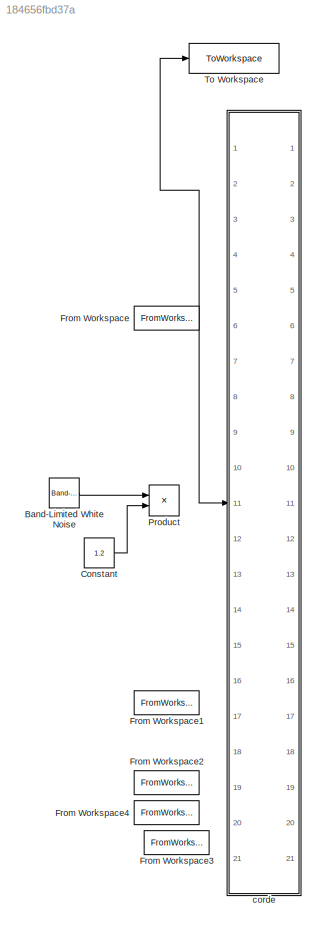
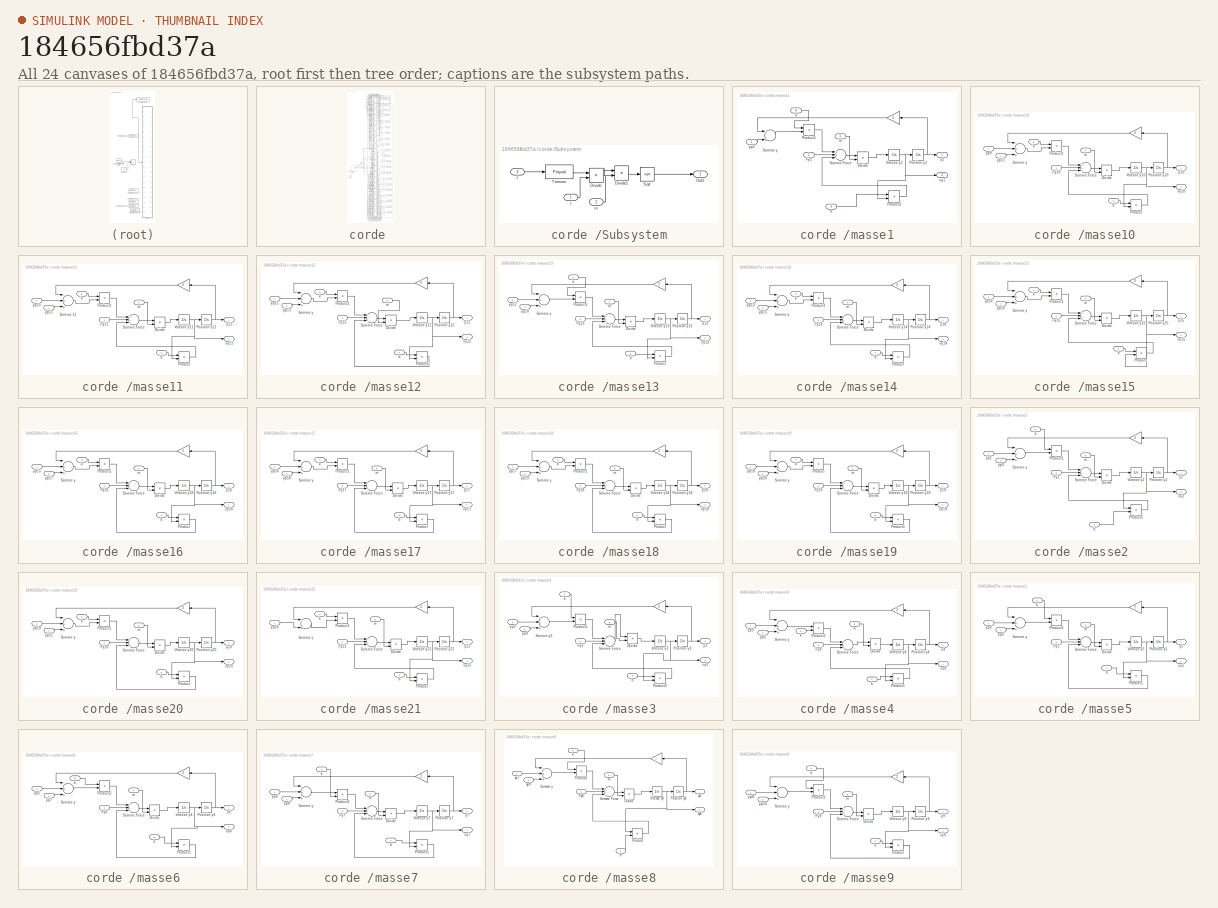
[diagram: thumbnail index - all 24 canvases of the model, root first then tree order]
MODEL slx_184656fbd37a
KIND model
CONFIG AbsTol = auto
CONFIG EnableMultiTasking = off
CONFIG FixedStep = auto
CONFIG MaxStep = auto
CONFIG MinStep = auto
CONFIG RelTol = 1e-3
CONFIG SampleTimeConstraint = Unconstrained
CONFIG Solver = VariableStepAuto
CONFIG SolverName = VariableStepAuto
CONFIG StartTime = 0.0
CONFIG StopTime = 10.0
BLOCK [Reference] Band-Limited White Noise  REF=simulink/Sources/Band-Limited
White Noise
  Commented = on
  Ports = [0, 1]
  SourceBlock = simulink/Sources/Band-Limited\nWhite Noise
  SourceProductBaseCode = SL
  SourceProductName = Simulink
  SourceType = Band-Limited White Noise.
BLOCK [Constant] Constant
  Commented = on
  Value = 1.2
BLOCK [FromWorkspace] From Workspace
  Commented = on
  SampleTime = 0
  VariableName = test
  ZeroCross = on
BLOCK [FromWorkspace] From Workspace1
  Commented = on
  SampleTime = 0
  VariableName = test
  ZeroCross = on
BLOCK [FromWorkspace] From Workspace2
  Commented = on
  SampleTime = 0
  VariableName = b
  ZeroCross = on
BLOCK [FromWorkspace] From Workspace3
  Commented = on
  SampleTime = 0
  VariableName = m
  ZeroCross = on
BLOCK [FromWorkspace] From Workspace4
  Commented = on
  SampleTime = 0
  VariableName = k
  ZeroCross = on
BLOCK [Product] Product
  Commented = on
  InputSameDT = off
  OutDataTypeStr = Inherit: Inherit via internal rule
  Ports = [2, 1]
  RndMeth = Floor
  SaturateOnIntegerOverflow = off
BLOCK [ToWorkspace] To Workspace
  FixptAsFi = on
  MaxDataPoints = inf
  Ports = [1]
  SampleTime = -1
  SaveFormat = Timeseries
  VariableName = force_a
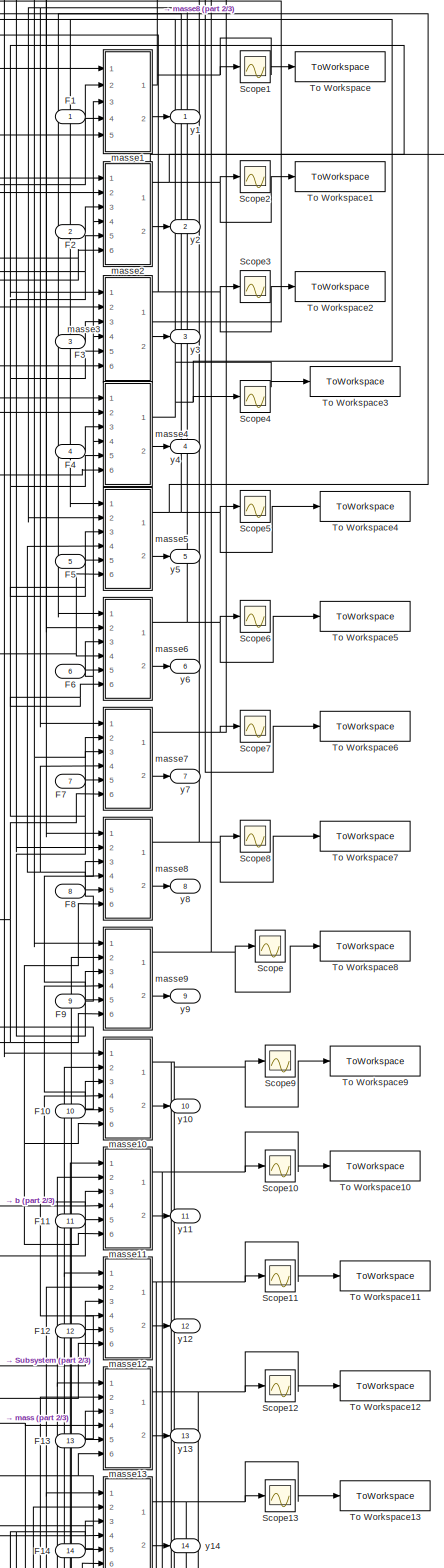
[diagram: corde  - part 1/3, middle right region]
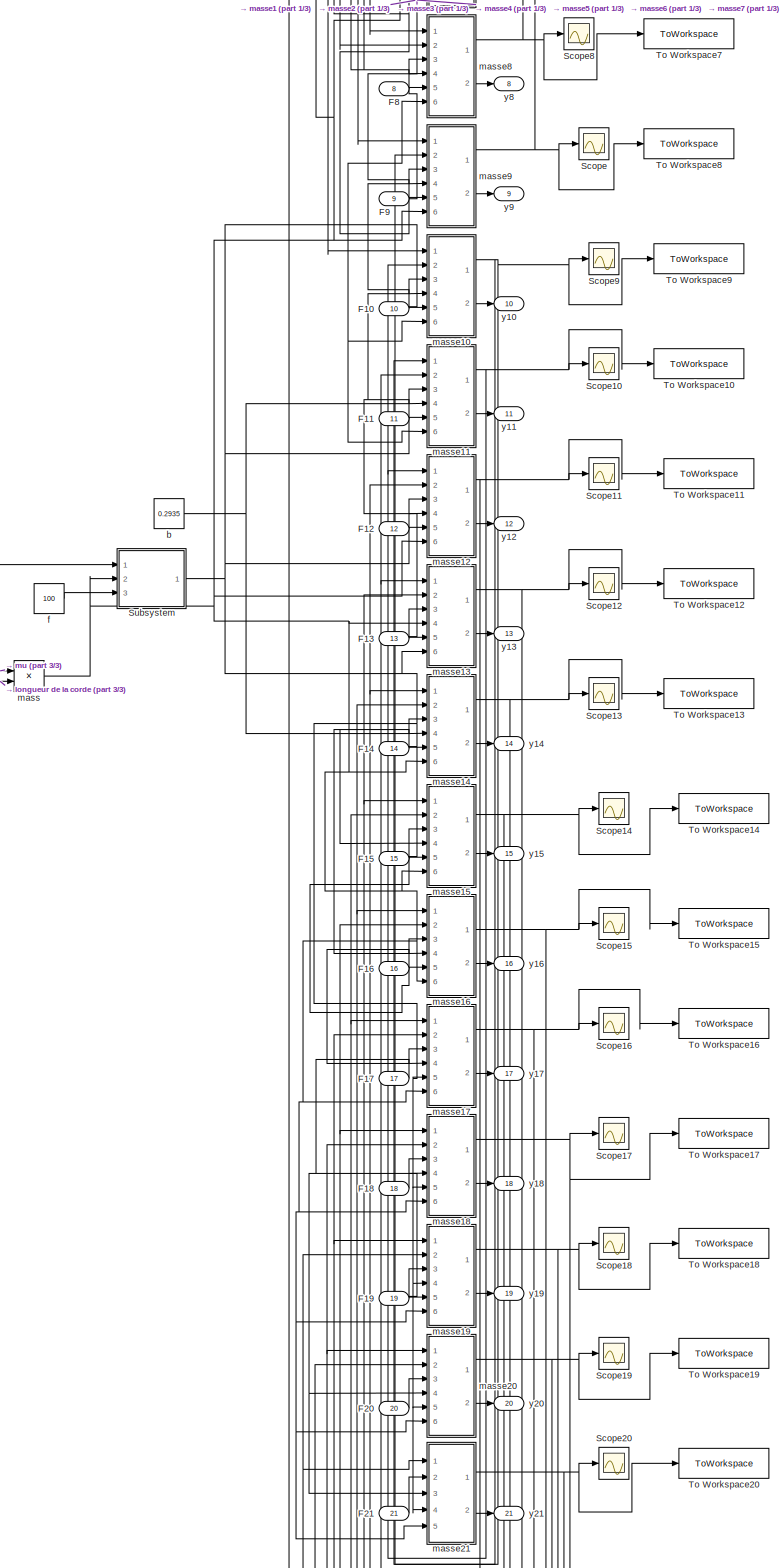
[diagram: corde  - part 2/3, full width, middle band]
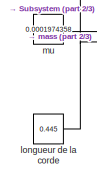
[diagram: corde  - part 3/3, middle left region]
BLOCK [SubSystem] corde 
  Ports = [21, 21]
  RequestExecContextInheritance = off
BLOCK [Inport] corde /F1
  IconDisplay = Port number
BLOCK [Inport] corde /F10
  IconDisplay = Port number
  Port = 10
BLOCK [Inport] corde /F11
  IconDisplay = Port number
  Port = 11
BLOCK [Inport] corde /F12
  IconDisplay = Port number
  Port = 12
BLOCK [Inport] corde /F13
  IconDisplay = Port number
  Port = 13
BLOCK [Inport] corde /F14
  IconDisplay = Port number
  Port = 14
BLOCK [Inport] corde /F15
  IconDisplay = Port number
  Port = 15
BLOCK [Inport] corde /F16
  IconDisplay = Port number
  Port = 16
BLOCK [Inport] corde /F17
  IconDisplay = Port number
  Port = 17
BLOCK [Inport] corde /F18
  IconDisplay = Port number
  Port = 18
BLOCK [Inport] corde /F19
  IconDisplay = Port number
  Port = 19
BLOCK [Inport] corde /F2
  IconDisplay = Port number
  Port = 2
BLOCK [Inport] corde /F20
  IconDisplay = Port number
  Port = 20
BLOCK [Inport] corde /F21
  IconDisplay = Port number
  Port = 21
BLOCK [Inport] corde /F3
  IconDisplay = Port number
  Port = 3
BLOCK [Inport] corde /F4
  IconDisplay = Port number
  Port = 4
BLOCK [Inport] corde /F5
  IconDisplay = Port number
  Port = 5
BLOCK [Inport] corde /F6
  IconDisplay = Port number
  Port = 6
BLOCK [Inport] corde /F7
  IconDisplay = Port number
  Port = 7
BLOCK [Inport] corde /F8
  IconDisplay = Port number
  Port = 8
BLOCK [Inport] corde /F9
  IconDisplay = Port number
  Port = 9
BLOCK [Scope] corde /Scope
  Floating = off
  NumInputPorts = 1
  Ports = [1]
  ScopeSpecificationString = Simulink.scopes.TimeScopeBlockCfg('CurrentConfiguration', extmgr.ConfigurationSet(extmgr.Configuration('Core','General UI',true),extmgr.Configuration('Core','Source UI',true),extmgr.Configuration('Sources','WiredSimulink',true,'DataLoggingSaveFormat','StructureWithTime','DataLoggingLimitDataPoints',true,'DataLoggingDecimation','1','DataLoggingDecimateData',true),extmgr.Configuration('Visuals','Tim...<+1643ch>
BLOCK [Scope] corde /Scope1
  Floating = off
  NumInputPorts = 1
  Ports = [1]
  ScopeSpecificationString = Simulink.scopes.TimeScopeBlockCfg('CurrentConfiguration', extmgr.ConfigurationSet(extmgr.Configuration('Core','General UI',true),extmgr.Configuration('Core','Source UI',true),extmgr.Configuration('Sources','WiredSimulink',true,'DataLoggingSaveFormat','StructureWithTime','DataLoggingLimitDataPoints',true,'DataLoggingDecimation','1','DataLoggingDecimateData',true,'DataLoggingVariableName','ScopeData...<+1678ch>
BLOCK [Scope] corde /Scope10
  Floating = off
  NumInputPorts = 1
  Ports = [1]
  ScopeSpecificationString = Simulink.scopes.TimeScopeBlockCfg('CurrentConfiguration', extmgr.ConfigurationSet(extmgr.Configuration('Core','General UI',true),extmgr.Configuration('Core','Source UI',true),extmgr.Configuration('Sources','WiredSimulink',true,'DataLoggingSaveFormat','StructureWithTime','DataLoggingLimitDataPoints',true,'DataLoggingDecimation','1','DataLoggingDecimateData',true,'DataLoggingVariableName','ScopeData...<+1684ch>  <repeated x7 — deduplicated; at blocks: Scope10, Scope11, Scope13, Scope16, Scope18, Scope19, Scope20>
BLOCK [Scope] corde /Scope11
  Floating = off
  NumInputPorts = 1
  Ports = [1]
BLOCK [Scope] corde /Scope12
  Floating = off
  NumInputPorts = 1
  Ports = [1]
  ScopeSpecificationString = Simulink.scopes.TimeScopeBlockCfg('CurrentConfiguration', extmgr.ConfigurationSet(extmgr.Configuration('Core','General UI',true),extmgr.Configuration('Core','Source UI',true),extmgr.Configuration('Sources','WiredSimulink',true,'DataLoggingSaveFormat','StructureWithTime','DataLoggingLimitDataPoints',true,'DataLoggingDecimation','1','DataLoggingDecimateData',true,'DataLoggingVariableName','ScopeData...<+1682ch>  <repeated x7 — deduplicated; at blocks: Scope12, Scope2, Scope3, Scope5, Scope6, Scope7, Scope8>
BLOCK [Scope] corde /Scope13
  Floating = off
  NumInputPorts = 1
  Ports = [1]
BLOCK [Scope] corde /Scope14
  Floating = off
  NumInputPorts = 1
  Ports = [1]
  ScopeSpecificationString = Simulink.scopes.TimeScopeBlockCfg('CurrentConfiguration', extmgr.ConfigurationSet(extmgr.Configuration('Core','General UI',true),extmgr.Configuration('Core','Source UI',true),extmgr.Configuration('Sources','WiredSimulink',true,'DataLoggingSaveFormat','StructureWithTime','DataLoggingLimitDataPoints',true,'DataLoggingDecimation','1','DataLoggingDecimateData',true,'DataLoggingVariableName','ScopeData...<+1683ch>  <repeated x3 — deduplicated; at blocks: Scope14, Scope15, Scope17>
BLOCK [Scope] corde /Scope15
  Floating = off
  NumInputPorts = 1
  Ports = [1]
BLOCK [Scope] corde /Scope16
  Floating = off
  NumInputPorts = 1
  Ports = [1]
BLOCK [Scope] corde /Scope17
  Floating = off
  NumInputPorts = 1
  Ports = [1]
BLOCK [Scope] corde /Scope18
  Floating = off
  NumInputPorts = 1
  Ports = [1]
BLOCK [Scope] corde /Scope19
  Floating = off
  NumInputPorts = 1
  Ports = [1]
BLOCK [Scope] corde /Scope2
  Floating = off
  NumInputPorts = 1
  Ports = [1]
BLOCK [Scope] corde /Scope20
  Floating = off
  NumInputPorts = 1
  Ports = [1]
BLOCK [Scope] corde /Scope3
  Floating = off
  NumInputPorts = 1
  Ports = [1]
BLOCK [Scope] corde /Scope4
  Floating = off
  NumInputPorts = 1
  Ports = [1]
  ScopeSpecificationString = Simulink.scopes.TimeScopeBlockCfg('CurrentConfiguration', extmgr.ConfigurationSet(extmgr.Configuration('Core','General UI',true),extmgr.Configuration('Core','Source UI',true),extmgr.Configuration('Sources','WiredSimulink',true,'DataLoggingSaveFormat','StructureWithTime','DataLoggingLimitDataPoints',true,'DataLoggingDecimation','1','DataLoggingDecimateData',true,'DataLoggingVariableName','ScopeData...<+1680ch>
BLOCK [Scope] corde /Scope5
  Floating = off
  NumInputPorts = 1
  Ports = [1]
BLOCK [Scope] corde /Scope6
  Floating = off
  NumInputPorts = 1
  Ports = [1]
BLOCK [Scope] corde /Scope7
  Floating = off
  NumInputPorts = 1
  Ports = [1]
BLOCK [Scope] corde /Scope8
  Floating = off
  NumInputPorts = 1
  Ports = [1]
BLOCK [Scope] corde /Scope9
  Floating = off
  NumInputPorts = 1
  Ports = [1]
  ScopeSpecificationString = Simulink.scopes.TimeScopeBlockCfg('CurrentConfiguration', extmgr.ConfigurationSet(extmgr.Configuration('Core','General UI',true),extmgr.Configuration('Core','Source UI',true),extmgr.Configuration('Sources','WiredSimulink',true,'DataLoggingSaveFormat','StructureWithTime','DataLoggingLimitDataPoints',true,'DataLoggingDecimation','1','DataLoggingDecimateData',true,'DataLoggingVariableName','ScopeData...<+1679ch>
BLOCK [SubSystem] corde /Subsystem
  Ports = [3, 1]
  RequestExecContextInheritance = off
BLOCK [Product] corde /Subsystem/Divide
  InputSameDT = off
  Inputs = */
  OutDataTypeStr = Inherit: Inherit via internal rule
  Ports = [2, 1]
  RndMeth = Floor
  SaturateOnIntegerOverflow = off
BLOCK [Product] corde /Subsystem/Divide1
  InputSameDT = off
  Inputs = */
  OutDataTypeStr = Inherit: Inherit via internal rule
  Ports = [2, 1]
  RndMeth = Floor
  SaturateOnIntegerOverflow = off
BLOCK [Outport] corde /Subsystem/Out1
  IconDisplay = Port number
BLOCK [Sqrt] corde /Subsystem/Sqrt
BLOCK [Polyval] corde /Subsystem/Tension
  Coefs = [1.138, -56.541]
BLOCK [Inport] corde /Subsystem/f
  IconDisplay = Port number
  Port = 3
BLOCK [Inport] corde /Subsystem/l
  IconDisplay = Port number
BLOCK [Inport] corde /Subsystem/m
  IconDisplay = Port number
  Port = 2
BLOCK [ToWorkspace] corde /To Workspace
  FixptAsFi = on
  MaxDataPoints = inf
  Ports = [1]
  SampleTime = -1
  Save2DSignal = 2-D array (concatenate along first dimension)
  VariableName = y1
BLOCK [ToWorkspace] corde /To Workspace1
  FixptAsFi = on
  MaxDataPoints = inf
  Ports = [1]
  SampleTime = -1
  Save2DSignal = 2-D array (concatenate along first dimension)
  VariableName = y2
BLOCK [ToWorkspace] corde /To Workspace10
  FixptAsFi = on
  MaxDataPoints = inf
  Ports = [1]
  SampleTime = -1
  Save2DSignal = 2-D array (concatenate along first dimension)
  VariableName = y11
BLOCK [ToWorkspace] corde /To Workspace11
  FixptAsFi = on
  MaxDataPoints = inf
  Ports = [1]
  SampleTime = -1
  Save2DSignal = 2-D array (concatenate along first dimension)
  VariableName = y12
BLOCK [ToWorkspace] corde /To Workspace12
  FixptAsFi = on
  MaxDataPoints = inf
  Ports = [1]
  SampleTime = -1
  Save2DSignal = 2-D array (concatenate along first dimension)
  VariableName = y13
BLOCK [ToWorkspace] corde /To Workspace13
  FixptAsFi = on
  MaxDataPoints = inf
  Ports = [1]
  SampleTime = -1
  Save2DSignal = 2-D array (concatenate along first dimension)
  VariableName = y14
BLOCK [ToWorkspace] corde /To Workspace14
  FixptAsFi = on
  MaxDataPoints = inf
  Ports = [1]
  SampleTime = -1
  Save2DSignal = 2-D array (concatenate along first dimension)
  VariableName = y15
BLOCK [ToWorkspace] corde /To Workspace15
  FixptAsFi = on
  MaxDataPoints = inf
  Ports = [1]
  SampleTime = -1
  Save2DSignal = 2-D array (concatenate along first dimension)
  VariableName = y16
BLOCK [ToWorkspace] corde /To Workspace16
  FixptAsFi = on
  MaxDataPoints = inf
  Ports = [1]
  SampleTime = -1
  Save2DSignal = 2-D array (concatenate along first dimension)
  VariableName = y17
BLOCK [ToWorkspace] corde /To Workspace17
  FixptAsFi = on
  MaxDataPoints = inf
  Ports = [1]
  SampleTime = -1
  Save2DSignal = 2-D array (concatenate along first dimension)
  VariableName = y18
BLOCK [ToWorkspace] corde /To Workspace18
  FixptAsFi = on
  MaxDataPoints = inf
  Ports = [1]
  SampleTime = -1
  Save2DSignal = 2-D array (concatenate along first dimension)
  VariableName = y19
BLOCK [ToWorkspace] corde /To Workspace19
  FixptAsFi = on
  MaxDataPoints = inf
  Ports = [1]
  SampleTime = -1
  Save2DSignal = 2-D array (concatenate along first dimension)
  VariableName = y20
BLOCK [ToWorkspace] corde /To Workspace2
  FixptAsFi = on
  MaxDataPoints = inf
  Ports = [1]
  SampleTime = -1
  Save2DSignal = 2-D array (concatenate along first dimension)
  VariableName = y3
BLOCK [ToWorkspace] corde /To Workspace20
  FixptAsFi = on
  MaxDataPoints = inf
  Ports = [1]
  SampleTime = -1
  Save2DSignal = 2-D array (concatenate along first dimension)
  VariableName = y21
BLOCK [ToWorkspace] corde /To Workspace3
  FixptAsFi = on
  MaxDataPoints = inf
  Ports = [1]
  SampleTime = -1
  Save2DSignal = 2-D array (concatenate along first dimension)
  VariableName = y4
BLOCK [ToWorkspace] corde /To Workspace4
  FixptAsFi = on
  MaxDataPoints = inf
  Ports = [1]
  SampleTime = -1
  Save2DSignal = 2-D array (concatenate along first dimension)
  VariableName = y5
BLOCK [ToWorkspace] corde /To Workspace5
  FixptAsFi = on
  MaxDataPoints = inf
  Ports = [1]
  SampleTime = -1
  Save2DSignal = 2-D array (concatenate along first dimension)
  VariableName = y6
BLOCK [ToWorkspace] corde /To Workspace6
  FixptAsFi = on
  MaxDataPoints = inf
  Ports = [1]
  SampleTime = -1
  Save2DSignal = 2-D array (concatenate along first dimension)
  VariableName = y7
BLOCK [ToWorkspace] corde /To Workspace7
  FixptAsFi = on
  MaxDataPoints = inf
  Ports = [1]
  SampleTime = -1
  Save2DSignal = 2-D array (concatenate along first dimension)
  VariableName = y8
BLOCK [ToWorkspace] corde /To Workspace8
  FixptAsFi = on
  MaxDataPoints = inf
  Ports = [1]
  SampleTime = -1
  Save2DSignal = 2-D array (concatenate along first dimension)
  VariableName = y9
BLOCK [ToWorkspace] corde /To Workspace9
  FixptAsFi = on
  MaxDataPoints = inf
  Ports = [1]
  SampleTime = -1
  Save2DSignal = 2-D array (concatenate along first dimension)
  VariableName = y10
BLOCK [Constant] corde /b
  Value = 0.2935
BLOCK [Constant] corde /f
  Value = 100
BLOCK [Constant] corde /longueur de la corde 
  Value = 0.445
BLOCK [Product] corde /mass
  InputSameDT = off
  OutDataTypeStr = Inherit: Inherit via internal rule
  Ports = [2, 1]
  RndMeth = Floor
  SaturateOnIntegerOverflow = off
BLOCK [SubSystem] corde /masse1
  Ports = [5, 2]
  RequestExecContextInheritance = off
BLOCK [Gain] corde /masse1/ 
  Gain = 2
BLOCK [Product] corde /masse1/Divide
  InputSameDT = off
  Inputs = */
  OutDataTypeStr = Inherit: Inherit via internal rule
  Ports = [2, 1]
  RndMeth = Floor
  SaturateOnIntegerOverflow = off
BLOCK [Inport] corde /masse1/Fy1
  IconDisplay = Port number
  Port = 2
BLOCK [Integrator] corde /masse1/Position y1
  InitialCondition = pos_ini
  Ports = [1, 1]
BLOCK [Product] corde /masse1/Product1
  InputSameDT = off
  OutDataTypeStr = Inherit: Inherit via internal rule
  Ports = [2, 1]
  RndMeth = Floor
  SaturateOnIntegerOverflow = off
BLOCK [Product] corde /masse1/Product2
  InputSameDT = off
  OutDataTypeStr = Inherit: Inherit via internal rule
  Ports = [2, 1]
  RndMeth = Floor
  SaturateOnIntegerOverflow = off
BLOCK [Sum] corde /masse1/Somme Force
  Inputs = ++-
  Ports = [3, 1]
BLOCK [Sum] corde /masse1/Somme y
  Inputs = -+
  Ports = [2, 1]
BLOCK [Integrator] corde /masse1/Vitesse y1
  InitialCondition = v_ini
  Ports = [1, 1]
BLOCK [Inport] corde /masse1/b
  IconDisplay = Port number
  Port = 3
BLOCK [Inport] corde /masse1/k
  IconDisplay = Port number
  Port = 4
BLOCK [Inport] corde /masse1/m
  IconDisplay = Port number
  Port = 5
BLOCK [Outport] corde /masse1/vy1
  IconDisplay = Port number
  Port = 2
  VectorParamsAs1DForOutWhenUnconnected = off
BLOCK [Outport] corde /masse1/y1
  IconDisplay = Port number
  VectorParamsAs1DForOutWhenUnconnected = off
BLOCK [Inport] corde /masse1/yp2
  IconDisplay = Port number
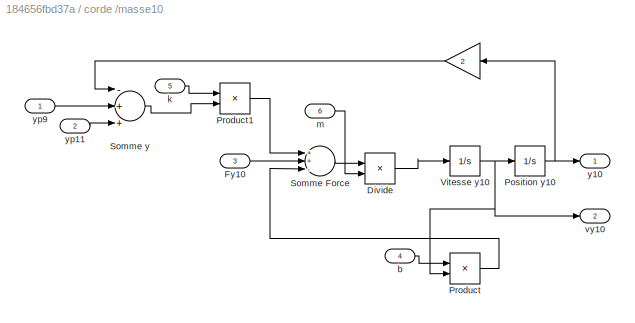
BLOCK [SubSystem] corde /masse10
  Ports = [6, 2]
  RequestExecContextInheritance = off
BLOCK [Gain] corde /masse10/ 
  Gain = 2
BLOCK [Product] corde /masse10/Divide
  InputSameDT = off
  Inputs = */
  OutDataTypeStr = Inherit: Inherit via internal rule
  Ports = [2, 1]
  RndMeth = Floor
  SaturateOnIntegerOverflow = off
BLOCK [Inport] corde /masse10/Fy10
  IconDisplay = Port number
  Port = 3
BLOCK [Integrator] corde /masse10/Position y10
  InitialCondition = pos_ini
  Ports = [1, 1]
BLOCK [Product] corde /masse10/Product
  InputSameDT = off
  OutDataTypeStr = Inherit: Inherit via internal rule
  Ports = [2, 1]
  RndMeth = Floor
  SaturateOnIntegerOverflow = off
BLOCK [Product] corde /masse10/Product1
  InputSameDT = off
  OutDataTypeStr = Inherit: Inherit via internal rule
  Ports = [2, 1]
  RndMeth = Floor
  SaturateOnIntegerOverflow = off
BLOCK [Sum] corde /masse10/Somme Force
  Inputs = ++-
  Ports = [3, 1]
BLOCK [Sum] corde /masse10/Somme y
  Inputs = -++
  Ports = [3, 1]
BLOCK [Integrator] corde /masse10/Vitesse y10
  InitialCondition = v_ini
  Ports = [1, 1]
BLOCK [Inport] corde /masse10/b
  IconDisplay = Port number
  Port = 4
BLOCK [Inport] corde /masse10/k
  IconDisplay = Port number
  Port = 5
BLOCK [Inport] corde /masse10/m
  IconDisplay = Port number
  Port = 6
BLOCK [Outport] corde /masse10/vy10
  IconDisplay = Port number
  Port = 2
  VectorParamsAs1DForOutWhenUnconnected = off
BLOCK [Outport] corde /masse10/y10
  IconDisplay = Port number
  VectorParamsAs1DForOutWhenUnconnected = off
BLOCK [Inport] corde /masse10/yp11
  IconDisplay = Port number
  Port = 2
BLOCK [Inport] corde /masse10/yp9
  IconDisplay = Port number
BLOCK [SubSystem] corde /masse11
  Ports = [6, 2]
  RequestExecContextInheritance = off
BLOCK [Gain] corde /masse11/ 
  Gain = 2
BLOCK [Product] corde /masse11/Divide
  InputSameDT = off
  Inputs = */
  OutDataTypeStr = Inherit: Inherit via internal rule
  Ports = [2, 1]
  RndMeth = Floor
  SaturateOnIntegerOverflow = off
BLOCK [Inport] corde /masse11/Fy11
  IconDisplay = Port number
  Port = 3
BLOCK [Integrator] corde /masse11/Position y11
  InitialCondition = pos_ini
  Ports = [1, 1]
BLOCK [Product] corde /masse11/Product
  InputSameDT = off
  OutDataTypeStr = Inherit: Inherit via internal rule
  Ports = [2, 1]
  RndMeth = Floor
  SaturateOnIntegerOverflow = off
BLOCK [Product] corde /masse11/Product1
  InputSameDT = off
  OutDataTypeStr = Inherit: Inherit via internal rule
  Ports = [2, 1]
  RndMeth = Floor
  SaturateOnIntegerOverflow = off
BLOCK [Sum] corde /masse11/Somme 11
  Inputs = -++
  Ports = [3, 1]
BLOCK [Sum] corde /masse11/Somme Force
  Inputs = ++-
  Ports = [3, 1]
BLOCK [Integrator] corde /masse11/Vitesse y11
  InitialCondition = v_ini
  Ports = [1, 1]
BLOCK [Inport] corde /masse11/b
  IconDisplay = Port number
  Port = 4
BLOCK [Inport] corde /masse11/k
  IconDisplay = Port number
  Port = 5
BLOCK [Inport] corde /masse11/m
  IconDisplay = Port number
  Port = 6
BLOCK [Outport] corde /masse11/vy11
  IconDisplay = Port number
  Port = 2
  VectorParamsAs1DForOutWhenUnconnected = off
BLOCK [Outport] corde /masse11/y11
  IconDisplay = Port number
  VectorParamsAs1DForOutWhenUnconnected = off
BLOCK [Inport] corde /masse11/yp10
  IconDisplay = Port number
BLOCK [Inport] corde /masse11/yp12
  IconDisplay = Port number
  Port = 2
BLOCK [SubSystem] corde /masse12
  Ports = [6, 2]
  RequestExecContextInheritance = off
BLOCK [Gain] corde /masse12/ 
  Gain = 2
BLOCK [Product] corde /masse12/Divide
  InputSameDT = off
  Inputs = */
  OutDataTypeStr = Inherit: Inherit via internal rule
  Ports = [2, 1]
  RndMeth = Floor
  SaturateOnIntegerOverflow = off
BLOCK [Inport] corde /masse12/Fy12
  IconDisplay = Port number
  Port = 3
BLOCK [Integrator] corde /masse12/Position y12
  InitialCondition = pos_ini
  Ports = [1, 1]
BLOCK [Product] corde /masse12/Product
  InputSameDT = off
  OutDataTypeStr = Inherit: Inherit via internal rule
  Ports = [2, 1]
  RndMeth = Floor
  SaturateOnIntegerOverflow = off
BLOCK [Product] corde /masse12/Product1
  InputSameDT = off
  OutDataTypeStr = Inherit: Inherit via internal rule
  Ports = [2, 1]
  RndMeth = Floor
  SaturateOnIntegerOverflow = off
BLOCK [Sum] corde /masse12/Somme Force
  Inputs = ++-
  Ports = [3, 1]
BLOCK [Sum] corde /masse12/Somme y
  Inputs = -++
  Ports = [3, 1]
BLOCK [Integrator] corde /masse12/Vitesse y12
  InitialCondition = v_ini
  Ports = [1, 1]
BLOCK [Inport] corde /masse12/b
  IconDisplay = Port number
  Port = 4
BLOCK [Inport] corde /masse12/k
  IconDisplay = Port number
  Port = 5
BLOCK [Inport] corde /masse12/m
  IconDisplay = Port number
  Port = 6
BLOCK [Outport] corde /masse12/vy12
  IconDisplay = Port number
  Port = 2
  VectorParamsAs1DForOutWhenUnconnected = off
BLOCK [Outport] corde /masse12/y12
  IconDisplay = Port number
  VectorParamsAs1DForOutWhenUnconnected = off
BLOCK [Inport] corde /masse12/yp11
  IconDisplay = Port number
BLOCK [Inport] corde /masse12/yp13
  IconDisplay = Port number
  Port = 2
BLOCK [SubSystem] corde /masse13
  Ports = [6, 2]
  RequestExecContextInheritance = off
BLOCK [Gain] corde /masse13/ 
  Gain = 2
BLOCK [Product] corde /masse13/Divide
  InputSameDT = off
  Inputs = */
  OutDataTypeStr = Inherit: Inherit via internal rule
  Ports = [2, 1]
  RndMeth = Floor
  SaturateOnIntegerOverflow = off
BLOCK [Inport] corde /masse13/Fy13
  IconDisplay = Port number
  Port = 3
BLOCK [Integrator] corde /masse13/Position y13
  InitialCondition = pos_ini
  Ports = [1, 1]
BLOCK [Product] corde /masse13/Product
  InputSameDT = off
  OutDataTypeStr = Inherit: Inherit via internal rule
  Ports = [2, 1]
  RndMeth = Floor
  SaturateOnIntegerOverflow = off
BLOCK [Product] corde /masse13/Product1
  InputSameDT = off
  OutDataTypeStr = Inherit: Inherit via internal rule
  Ports = [2, 1]
  RndMeth = Floor
  SaturateOnIntegerOverflow = off
BLOCK [Sum] corde /masse13/Somme Force
  Inputs = ++-
  Ports = [3, 1]
BLOCK [Sum] corde /masse13/Somme y
  Inputs = -++
  Ports = [3, 1]
BLOCK [Integrator] corde /masse13/Vitesse y13
  InitialCondition = v_ini
  Ports = [1, 1]
BLOCK [Inport] corde /masse13/b
  IconDisplay = Port number
  Port = 5
BLOCK [Inport] corde /masse13/k
  IconDisplay = Port number
  Port = 6
BLOCK [Inport] corde /masse13/m
  IconDisplay = Port number
  Port = 4
BLOCK [Outport] corde /masse13/vy13
  IconDisplay = Port number
  Port = 2
  VectorParamsAs1DForOutWhenUnconnected = off
BLOCK [Outport] corde /masse13/y13
  IconDisplay = Port number
  VectorParamsAs1DForOutWhenUnconnected = off
BLOCK [Inport] corde /masse13/yp12
  IconDisplay = Port number
BLOCK [Inport] corde /masse13/yp14
  IconDisplay = Port number
  Port = 2
BLOCK [SubSystem] corde /masse14
  Ports = [6, 2]
  RequestExecContextInheritance = off
BLOCK [Gain] corde /masse14/ 
  Gain = 2
BLOCK [Product] corde /masse14/Divide
  InputSameDT = off
  Inputs = */
  OutDataTypeStr = Inherit: Inherit via internal rule
  Ports = [2, 1]
  RndMeth = Floor
  SaturateOnIntegerOverflow = off
BLOCK [Inport] corde /masse14/Fy14
  IconDisplay = Port number
  Port = 3
BLOCK [Integrator] corde /masse14/Position y14
  InitialCondition = pos_ini
  Ports = [1, 1]
BLOCK [Product] corde /masse14/Product
  InputSameDT = off
  OutDataTypeStr = Inherit: Inherit via internal rule
  Ports = [2, 1]
  RndMeth = Floor
  SaturateOnIntegerOverflow = off
BLOCK [Product] corde /masse14/Product1
  InputSameDT = off
  OutDataTypeStr = Inherit: Inherit via internal rule
  Ports = [2, 1]
  RndMeth = Floor
  SaturateOnIntegerOverflow = off
BLOCK [Sum] corde /masse14/Somme Force
  Inputs = ++-
  Ports = [3, 1]
BLOCK [Sum] corde /masse14/Somme y
  Inputs = -++
  Ports = [3, 1]
BLOCK [Integrator] corde /masse14/Vitesse y14
  InitialCondition = v_ini
  Ports = [1, 1]
BLOCK [Inport] corde /masse14/b
  IconDisplay = Port number
  Port = 4
BLOCK [Inport] corde /masse14/k 
  IconDisplay = Port number
  Port = 5
BLOCK [Inport] corde /masse14/m
  IconDisplay = Port number
  Port = 6
BLOCK [Outport] corde /masse14/vy14
  IconDisplay = Port number
  Port = 2
  VectorParamsAs1DForOutWhenUnconnected = off
BLOCK [Outport] corde /masse14/y14
  IconDisplay = Port number
  VectorParamsAs1DForOutWhenUnconnected = off
BLOCK [Inport] corde /masse14/yp13
  IconDisplay = Port number
BLOCK [Inport] corde /masse14/yp15
  IconDisplay = Port number
  Port = 2
BLOCK [SubSystem] corde /masse15
  Ports = [6, 2]
  RequestExecContextInheritance = off
BLOCK [Gain] corde /masse15/ 
  Gain = 2
BLOCK [Product] corde /masse15/Divide
  InputSameDT = off
  Inputs = */
  OutDataTypeStr = Inherit: Inherit via internal rule
  Ports = [2, 1]
  RndMeth = Floor
  SaturateOnIntegerOverflow = off
BLOCK [Inport] corde /masse15/Fy15
  IconDisplay = Port number
  Port = 3
BLOCK [Integrator] corde /masse15/Position y15
  InitialCondition = pos_ini
  Ports = [1, 1]
BLOCK [Product] corde /masse15/Product
  InputSameDT = off
  OutDataTypeStr = Inherit: Inherit via internal rule
  Ports = [2, 1]
  RndMeth = Floor
  SaturateOnIntegerOverflow = off
BLOCK [Product] corde /masse15/Product1
  InputSameDT = off
  OutDataTypeStr = Inherit: Inherit via internal rule
  Ports = [2, 1]
  RndMeth = Floor
  SaturateOnIntegerOverflow = off
BLOCK [Sum] corde /masse15/Somme Force
  Inputs = ++-
  Ports = [3, 1]
BLOCK [Sum] corde /masse15/Somme y
  Inputs = -++
  Ports = [3, 1]
BLOCK [Integrator] corde /masse15/Vitesse y15
  InitialCondition = v_ini
  Ports = [1, 1]
BLOCK [Inport] corde /masse15/b
  IconDisplay = Port number
  Port = 4
BLOCK [Inport] corde /masse15/k
  IconDisplay = Port number
  Port = 5
BLOCK [Inport] corde /masse15/m
  IconDisplay = Port number
  Port = 6
BLOCK [Outport] corde /masse15/vy15
  IconDisplay = Port number
  Port = 2
  VectorParamsAs1DForOutWhenUnconnected = off
BLOCK [Outport] corde /masse15/y15
  IconDisplay = Port number
  VectorParamsAs1DForOutWhenUnconnected = off
BLOCK [Inport] corde /masse15/yp14
  IconDisplay = Port number
BLOCK [Inport] corde /masse15/yp16
  IconDisplay = Port number
  Port = 2
BLOCK [SubSystem] corde /masse16
  Ports = [6, 2]
  RequestExecContextInheritance = off
BLOCK [Gain] corde /masse16/ 
  Gain = 2
BLOCK [Product] corde /masse16/Divide
  InputSameDT = off
  Inputs = */
  OutDataTypeStr = Inherit: Inherit via internal rule
  Ports = [2, 1]
  RndMeth = Floor
  SaturateOnIntegerOverflow = off
BLOCK [Inport] corde /masse16/Fy16
  IconDisplay = Port number
  Port = 3
BLOCK [Integrator] corde /masse16/Position y16
  InitialCondition = pos_ini
  Ports = [1, 1]
BLOCK [Product] corde /masse16/Product
  InputSameDT = off
  OutDataTypeStr = Inherit: Inherit via internal rule
  Ports = [2, 1]
  RndMeth = Floor
  SaturateOnIntegerOverflow = off
BLOCK [Product] corde /masse16/Product1
  InputSameDT = off
  OutDataTypeStr = Inherit: Inherit via internal rule
  Ports = [2, 1]
  RndMeth = Floor
  SaturateOnIntegerOverflow = off
BLOCK [Sum] corde /masse16/Somme Force
  Inputs = ++-
  Ports = [3, 1]
BLOCK [Sum] corde /masse16/Somme y
  Inputs = -++
  Ports = [3, 1]
BLOCK [Integrator] corde /masse16/Vitesse y16
  InitialCondition = v_ini
  Ports = [1, 1]
BLOCK [Inport] corde /masse16/b
  IconDisplay = Port number
  Port = 4
BLOCK [Inport] corde /masse16/k
  IconDisplay = Port number
  Port = 5
BLOCK [Inport] corde /masse16/m
  IconDisplay = Port number
  Port = 6
BLOCK [Outport] corde /masse16/vy16
  IconDisplay = Port number
  Port = 2
  VectorParamsAs1DForOutWhenUnconnected = off
BLOCK [Outport] corde /masse16/y16
  IconDisplay = Port number
  VectorParamsAs1DForOutWhenUnconnected = off
BLOCK [Inport] corde /masse16/yp15
  IconDisplay = Port number
BLOCK [Inport] corde /masse16/yp17
  IconDisplay = Port number
  Port = 2
BLOCK [SubSystem] corde /masse17
  Ports = [6, 2]
  RequestExecContextInheritance = off
BLOCK [Gain] corde /masse17/ 
  Gain = 2
BLOCK [Product] corde /masse17/Divide
  InputSameDT = off
  Inputs = */
  OutDataTypeStr = Inherit: Inherit via internal rule
  Ports = [2, 1]
  RndMeth = Floor
  SaturateOnIntegerOverflow = off
BLOCK [Inport] corde /masse17/Fy17
  IconDisplay = Port number
  Port = 3
BLOCK [Integrator] corde /masse17/Position y17
  InitialCondition = pos_ini
  Ports = [1, 1]
BLOCK [Product] corde /masse17/Product
  InputSameDT = off
  OutDataTypeStr = Inherit: Inherit via internal rule
  Ports = [2, 1]
  RndMeth = Floor
  SaturateOnIntegerOverflow = off
BLOCK [Product] corde /masse17/Product1
  InputSameDT = off
  OutDataTypeStr = Inherit: Inherit via internal rule
  Ports = [2, 1]
  RndMeth = Floor
  SaturateOnIntegerOverflow = off
BLOCK [Sum] corde /masse17/Somme Force
  Inputs = ++-
  Ports = [3, 1]
BLOCK [Sum] corde /masse17/Somme y
  Inputs = -++
  Ports = [3, 1]
BLOCK [Integrator] corde /masse17/Vitesse y17
  InitialCondition = v_ini
  Ports = [1, 1]
BLOCK [Inport] corde /masse17/b
  IconDisplay = Port number
  Port = 4
BLOCK [Inport] corde /masse17/k
  IconDisplay = Port number
  Port = 5
BLOCK [Inport] corde /masse17/m
  IconDisplay = Port number
  Port = 6
BLOCK [Outport] corde /masse17/vy17
  IconDisplay = Port number
  Port = 2
  VectorParamsAs1DForOutWhenUnconnected = off
BLOCK [Outport] corde /masse17/y17
  IconDisplay = Port number
  VectorParamsAs1DForOutWhenUnconnected = off
BLOCK [Inport] corde /masse17/yp16
  IconDisplay = Port number
BLOCK [Inport] corde /masse17/yp18
  IconDisplay = Port number
  Port = 2
BLOCK [SubSystem] corde /masse18
  Ports = [6, 2]
  RequestExecContextInheritance = off
BLOCK [Gain] corde /masse18/ 
  Gain = 2
BLOCK [Product] corde /masse18/Divide
  InputSameDT = off
  Inputs = */
  OutDataTypeStr = Inherit: Inherit via internal rule
  Ports = [2, 1]
  RndMeth = Floor
  SaturateOnIntegerOverflow = off
BLOCK [Inport] corde /masse18/Fy18
  IconDisplay = Port number
  Port = 3
BLOCK [Integrator] corde /masse18/Position y18
  InitialCondition = pos_ini
  Ports = [1, 1]
BLOCK [Product] corde /masse18/Product
  InputSameDT = off
  OutDataTypeStr = Inherit: Inherit via internal rule
  Ports = [2, 1]
  RndMeth = Floor
  SaturateOnIntegerOverflow = off
BLOCK [Product] corde /masse18/Product1
  InputSameDT = off
  OutDataTypeStr = Inherit: Inherit via internal rule
  Ports = [2, 1]
  RndMeth = Floor
  SaturateOnIntegerOverflow = off
BLOCK [Sum] corde /masse18/Somme Force
  Inputs = ++-
  Ports = [3, 1]
BLOCK [Sum] corde /masse18/Somme y
  Inputs = -++
  Ports = [3, 1]
BLOCK [Integrator] corde /masse18/Vitesse y18
  InitialCondition = v_ini
  Ports = [1, 1]
BLOCK [Inport] corde /masse18/b
  IconDisplay = Port number
  Port = 4
BLOCK [Inport] corde /masse18/k
  IconDisplay = Port number
  Port = 5
BLOCK [Inport] corde /masse18/m
  IconDisplay = Port number
  Port = 6
BLOCK [Outport] corde /masse18/vy18
  IconDisplay = Port number
  Port = 2
  VectorParamsAs1DForOutWhenUnconnected = off
BLOCK [Outport] corde /masse18/y18
  IconDisplay = Port number
  VectorParamsAs1DForOutWhenUnconnected = off
BLOCK [Inport] corde /masse18/yp17
  IconDisplay = Port number
BLOCK [Inport] corde /masse18/yp19
  IconDisplay = Port number
  Port = 2
BLOCK [SubSystem] corde /masse19
  Ports = [6, 2]
  RequestExecContextInheritance = off
BLOCK [Gain] corde /masse19/ 
  Gain = 2
BLOCK [Product] corde /masse19/Divide
  InputSameDT = off
  Inputs = */
  OutDataTypeStr = Inherit: Inherit via internal rule
  Ports = [2, 1]
  RndMeth = Floor
  SaturateOnIntegerOverflow = off
BLOCK [Inport] corde /masse19/Fy19
  IconDisplay = Port number
  Port = 3
BLOCK [Integrator] corde /masse19/Position y19
  InitialCondition = pos_ini
  Ports = [1, 1]
BLOCK [Product] corde /masse19/Product
  InputSameDT = off
  OutDataTypeStr = Inherit: Inherit via internal rule
  Ports = [2, 1]
  RndMeth = Floor
  SaturateOnIntegerOverflow = off
BLOCK [Product] corde /masse19/Product1
  InputSameDT = off
  OutDataTypeStr = Inherit: Inherit via internal rule
  Ports = [2, 1]
  RndMeth = Floor
  SaturateOnIntegerOverflow = off
BLOCK [Sum] corde /masse19/Somme Force
  Inputs = ++-
  Ports = [3, 1]
BLOCK [Sum] corde /masse19/Somme y
  Inputs = -++
  Ports = [3, 1]
BLOCK [Integrator] corde /masse19/Vitesse y19
  InitialCondition = v_ini
  Ports = [1, 1]
BLOCK [Inport] corde /masse19/b
  IconDisplay = Port number
  Port = 5
BLOCK [Inport] corde /masse19/k
  IconDisplay = Port number
  Port = 4
BLOCK [Inport] corde /masse19/m
  IconDisplay = Port number
  Port = 6
BLOCK [Outport] corde /masse19/vy19
  IconDisplay = Port number
  Port = 2
  VectorParamsAs1DForOutWhenUnconnected = off
BLOCK [Outport] corde /masse19/y19
  IconDisplay = Port number
  VectorParamsAs1DForOutWhenUnconnected = off
BLOCK [Inport] corde /masse19/yp18
  IconDisplay = Port number
BLOCK [Inport] corde /masse19/yp20
  IconDisplay = Port number
  Port = 2
BLOCK [SubSystem] corde /masse2 
  Ports = [6, 2]
  RequestExecContextInheritance = off
BLOCK [Gain] corde /masse2 / 
  Gain = 2
BLOCK [Product] corde /masse2 /Divide
  InputSameDT = off
  Inputs = */
  OutDataTypeStr = Inherit: Inherit via internal rule
  Ports = [2, 1]
  RndMeth = Floor
  SaturateOnIntegerOverflow = off
BLOCK [Inport] corde /masse2 /Fy2
  IconDisplay = Port number
  Port = 3
BLOCK [Integrator] corde /masse2 /Position y2
  InitialCondition = pos_ini
  Ports = [1, 1]
BLOCK [Product] corde /masse2 /Product1
  InputSameDT = off
  OutDataTypeStr = Inherit: Inherit via internal rule
  Ports = [2, 1]
  RndMeth = Floor
  SaturateOnIntegerOverflow = off
BLOCK [Product] corde /masse2 /Product2
  InputSameDT = off
  OutDataTypeStr = Inherit: Inherit via internal rule
  Ports = [2, 1]
  RndMeth = Floor
  SaturateOnIntegerOverflow = off
BLOCK [Sum] corde /masse2 /Somme Force
  Inputs = ++-
  Ports = [3, 1]
BLOCK [Sum] corde /masse2 /Somme y
  Inputs = -++
  Ports = [3, 1]
BLOCK [Integrator] corde /masse2 /Vitesse y2
  InitialCondition = v_ini
  Ports = [1, 1]
BLOCK [Inport] corde /masse2 /b
  IconDisplay = Port number
  Port = 4
BLOCK [Inport] corde /masse2 /k
  IconDisplay = Port number
  Port = 5
BLOCK [Inport] corde /masse2 /m
  IconDisplay = Port number
  Port = 6
BLOCK [Outport] corde /masse2 /vy2
  IconDisplay = Port number
  Port = 2
  VectorParamsAs1DForOutWhenUnconnected = off
BLOCK [Outport] corde /masse2 /y2
  IconDisplay = Port number
  VectorParamsAs1DForOutWhenUnconnected = off
BLOCK [Inport] corde /masse2 /yp1
  IconDisplay = Port number
BLOCK [Inport] corde /masse2 /yp3
  IconDisplay = Port number
  Port = 2
BLOCK [SubSystem] corde /masse20
  Ports = [6, 2]
  RequestExecContextInheritance = off
BLOCK [Gain] corde /masse20/ 
  Gain = 2
BLOCK [Product] corde /masse20/Divide
  InputSameDT = off
  Inputs = */
  OutDataTypeStr = Inherit: Inherit via internal rule
  Ports = [2, 1]
  RndMeth = Floor
  SaturateOnIntegerOverflow = off
BLOCK [Inport] corde /masse20/Fy20
  IconDisplay = Port number
  Port = 3
BLOCK [Integrator] corde /masse20/Position y20
  InitialCondition = pos_ini
  Ports = [1, 1]
BLOCK [Product] corde /masse20/Product
  InputSameDT = off
  OutDataTypeStr = Inherit: Inherit via internal rule
  Ports = [2, 1]
  RndMeth = Floor
  SaturateOnIntegerOverflow = off
BLOCK [Product] corde /masse20/Product1
  InputSameDT = off
  OutDataTypeStr = Inherit: Inherit via internal rule
  Ports = [2, 1]
  RndMeth = Floor
  SaturateOnIntegerOverflow = off
BLOCK [Sum] corde /masse20/Somme Force
  Inputs = ++-
  Ports = [3, 1]
BLOCK [Sum] corde /masse20/Somme y
  Inputs = -++
  Ports = [3, 1]
BLOCK [Integrator] corde /masse20/Vitesse y20
  InitialCondition = v_ini
  Ports = [1, 1]
BLOCK [Inport] corde /masse20/b
  IconDisplay = Port number
  Port = 4
BLOCK [Inport] corde /masse20/k
  IconDisplay = Port number
  Port = 5
BLOCK [Inport] corde /masse20/m
  IconDisplay = Port number
  Port = 6
BLOCK [Outport] corde /masse20/vy20
  IconDisplay = Port number
  Port = 2
  VectorParamsAs1DForOutWhenUnconnected = off
BLOCK [Outport] corde /masse20/y20
  IconDisplay = Port number
  VectorParamsAs1DForOutWhenUnconnected = off
BLOCK [Inport] corde /masse20/yp19
  IconDisplay = Port number
BLOCK [Inport] corde /masse20/yp21
  IconDisplay = Port number
  Port = 2
BLOCK [SubSystem] corde /masse21
  Ports = [5, 2]
  RequestExecContextInheritance = off
BLOCK [Gain] corde /masse21/ 
  Gain = 2
BLOCK [Product] corde /masse21/Divide
  InputSameDT = off
  Inputs = */
  OutDataTypeStr = Inherit: Inherit via internal rule
  Ports = [2, 1]
  RndMeth = Floor
  SaturateOnIntegerOverflow = off
BLOCK [Inport] corde /masse21/Fy21
  IconDisplay = Port number
  Port = 2
BLOCK [Integrator] corde /masse21/Position y21
  InitialCondition = pos_ini
  Ports = [1, 1]
BLOCK [Product] corde /masse21/Product
  InputSameDT = off
  OutDataTypeStr = Inherit: Inherit via internal rule
  Ports = [2, 1]
  RndMeth = Floor
  SaturateOnIntegerOverflow = off
BLOCK [Product] corde /masse21/Product1
  InputSameDT = off
  OutDataTypeStr = Inherit: Inherit via internal rule
  Ports = [2, 1]
  RndMeth = Floor
  SaturateOnIntegerOverflow = off
BLOCK [Sum] corde /masse21/Somme Force
  Inputs = ++-
  Ports = [3, 1]
BLOCK [Sum] corde /masse21/Somme y
  Inputs = -+
  Ports = [2, 1]
BLOCK [Integrator] corde /masse21/Vitesse y21
  InitialCondition = v_ini
  Ports = [1, 1]
BLOCK [Inport] corde /masse21/b
  IconDisplay = Port number
  Port = 3
BLOCK [Inport] corde /masse21/k
  IconDisplay = Port number
  Port = 4
BLOCK [Inport] corde /masse21/m
  IconDisplay = Port number
  Port = 5
BLOCK [Outport] corde /masse21/vy21
  IconDisplay = Port number
  Port = 2
  VectorParamsAs1DForOutWhenUnconnected = off
BLOCK [Outport] corde /masse21/y21
  IconDisplay = Port number
  VectorParamsAs1DForOutWhenUnconnected = off
BLOCK [Inport] corde /masse21/yp20
  IconDisplay = Port number
BLOCK [SubSystem] corde /masse3
  Ports = [6, 2]
  RequestExecContextInheritance = off
BLOCK [Gain] corde /masse3/ 
  Gain = 2
BLOCK [Product] corde /masse3/Divide
  InputSameDT = off
  Inputs = */
  OutDataTypeStr = Inherit: Inherit via internal rule
  Ports = [2, 1]
  RndMeth = Floor
  SaturateOnIntegerOverflow = off
BLOCK [Inport] corde /masse3/Fy3
  IconDisplay = Port number
  Port = 3
BLOCK [Integrator] corde /masse3/Position y3
  InitialCondition = pos_ini
  Ports = [1, 1]
BLOCK [Product] corde /masse3/Product1
  InputSameDT = off
  OutDataTypeStr = Inherit: Inherit via internal rule
  Ports = [2, 1]
  RndMeth = Floor
  SaturateOnIntegerOverflow = off
BLOCK [Product] corde /masse3/Product2
  InputSameDT = off
  OutDataTypeStr = Inherit: Inherit via internal rule
  Ports = [2, 1]
  RndMeth = Floor
  SaturateOnIntegerOverflow = off
BLOCK [Sum] corde /masse3/Somme Force
  Inputs = ++-
  Ports = [3, 1]
BLOCK [Sum] corde /masse3/Somme y3
  Inputs = -++
  Ports = [3, 1]
BLOCK [Integrator] corde /masse3/Vitesse y3
  InitialCondition = v_ini
  Ports = [1, 1]
BLOCK [Inport] corde /masse3/b
  IconDisplay = Port number
  Port = 4
BLOCK [Inport] corde /masse3/k
  IconDisplay = Port number
  Port = 5
BLOCK [Inport] corde /masse3/m
  IconDisplay = Port number
  Port = 6
BLOCK [Outport] corde /masse3/vy3
  IconDisplay = Port number
  Port = 2
  VectorParamsAs1DForOutWhenUnconnected = off
BLOCK [Outport] corde /masse3/y3
  IconDisplay = Port number
  VectorParamsAs1DForOutWhenUnconnected = off
BLOCK [Inport] corde /masse3/yp2
  IconDisplay = Port number
BLOCK [Inport] corde /masse3/yp4
  IconDisplay = Port number
  Port = 2
BLOCK [SubSystem] corde /masse4
  Ports = [6, 2]
  RequestExecContextInheritance = off
BLOCK [Gain] corde /masse4/ 
  Gain = 2
BLOCK [Product] corde /masse4/Divide
  InputSameDT = off
  Inputs = */
  OutDataTypeStr = Inherit: Inherit via internal rule
  Ports = [2, 1]
  RndMeth = Floor
  SaturateOnIntegerOverflow = off
BLOCK [Inport] corde /masse4/Fy4
  IconDisplay = Port number
  Port = 3
BLOCK [Integrator] corde /masse4/Position y4
  InitialCondition = pos_ini
  Ports = [1, 1]
BLOCK [Product] corde /masse4/Product1
  InputSameDT = off
  OutDataTypeStr = Inherit: Inherit via internal rule
  Ports = [2, 1]
  RndMeth = Floor
  SaturateOnIntegerOverflow = off
BLOCK [Product] corde /masse4/Product2
  InputSameDT = off
  OutDataTypeStr = Inherit: Inherit via internal rule
  Ports = [2, 1]
  RndMeth = Floor
  SaturateOnIntegerOverflow = off
BLOCK [Sum] corde /masse4/Somme Force
  Inputs = ++-
  Ports = [3, 1]
BLOCK [Sum] corde /masse4/Somme y
  Inputs = -++
  Ports = [3, 1]
BLOCK [Integrator] corde /masse4/Vitesse y4
  InitialCondition = v_ini
  Ports = [1, 1]
BLOCK [Inport] corde /masse4/b
  IconDisplay = Port number
  Port = 4
BLOCK [Inport] corde /masse4/k
  IconDisplay = Port number
  Port = 5
BLOCK [Inport] corde /masse4/m
  IconDisplay = Port number
  Port = 6
BLOCK [Outport] corde /masse4/vy4
  IconDisplay = Port number
  Port = 2
  VectorParamsAs1DForOutWhenUnconnected = off
BLOCK [Outport] corde /masse4/y4
  IconDisplay = Port number
  VectorParamsAs1DForOutWhenUnconnected = off
BLOCK [Inport] corde /masse4/yp3
  IconDisplay = Port number
BLOCK [Inport] corde /masse4/yp5
  IconDisplay = Port number
  Port = 2
BLOCK [SubSystem] corde /masse5
  Ports = [6, 2]
  RequestExecContextInheritance = off
BLOCK [Gain] corde /masse5/ 
  Gain = 2
BLOCK [Product] corde /masse5/Divide
  InputSameDT = off
  Inputs = */
  OutDataTypeStr = Inherit: Inherit via internal rule
  Ports = [2, 1]
  RndMeth = Floor
  SaturateOnIntegerOverflow = off
BLOCK [Inport] corde /masse5/Fy5
  IconDisplay = Port number
  Port = 3
BLOCK [Integrator] corde /masse5/Position y5
  InitialCondition = pos_ini
  Ports = [1, 1]
BLOCK [Product] corde /masse5/Product1
  InputSameDT = off
  OutDataTypeStr = Inherit: Inherit via internal rule
  Ports = [2, 1]
  RndMeth = Floor
  SaturateOnIntegerOverflow = off
BLOCK [Product] corde /masse5/Product2
  InputSameDT = off
  OutDataTypeStr = Inherit: Inherit via internal rule
  Ports = [2, 1]
  RndMeth = Floor
  SaturateOnIntegerOverflow = off
BLOCK [Sum] corde /masse5/Somme Force
  Inputs = ++-
  Ports = [3, 1]
BLOCK [Sum] corde /masse5/Somme y
  Inputs = -++
  Ports = [3, 1]
BLOCK [Integrator] corde /masse5/Vitesse y5
  InitialCondition = v_ini
  Ports = [1, 1]
BLOCK [Inport] corde /masse5/b 
  IconDisplay = Port number
  Port = 4
BLOCK [Inport] corde /masse5/k
  IconDisplay = Port number
  Port = 5
BLOCK [Inport] corde /masse5/m
  IconDisplay = Port number
  Port = 6
BLOCK [Outport] corde /masse5/vy5
  IconDisplay = Port number
  Port = 2
  VectorParamsAs1DForOutWhenUnconnected = off
BLOCK [Outport] corde /masse5/y5
  IconDisplay = Port number
  VectorParamsAs1DForOutWhenUnconnected = off
BLOCK [Inport] corde /masse5/yp4
  IconDisplay = Port number
BLOCK [Inport] corde /masse5/yp6
  IconDisplay = Port number
  Port = 2
BLOCK [SubSystem] corde /masse6
  Ports = [6, 2]
  RequestExecContextInheritance = off
BLOCK [Gain] corde /masse6/ 
  Gain = 2
BLOCK [Product] corde /masse6/Divide
  InputSameDT = off
  Inputs = */
  OutDataTypeStr = Inherit: Inherit via internal rule
  Ports = [2, 1]
  RndMeth = Floor
  SaturateOnIntegerOverflow = off
BLOCK [Inport] corde /masse6/Fy6
  IconDisplay = Port number
  Port = 3
BLOCK [Integrator] corde /masse6/Position y6
  InitialCondition = pos_ini
  Ports = [1, 1]
BLOCK [Product] corde /masse6/Product1
  InputSameDT = off
  OutDataTypeStr = Inherit: Inherit via internal rule
  Ports = [2, 1]
  RndMeth = Floor
  SaturateOnIntegerOverflow = off
BLOCK [Product] corde /masse6/Product2
  InputSameDT = off
  OutDataTypeStr = Inherit: Inherit via internal rule
  Ports = [2, 1]
  RndMeth = Floor
  SaturateOnIntegerOverflow = off
BLOCK [Sum] corde /masse6/Somme Force
  Inputs = ++-
  Ports = [3, 1]
BLOCK [Sum] corde /masse6/Somme y
  Inputs = -++
  Ports = [3, 1]
BLOCK [Integrator] corde /masse6/Vitesse y6
  InitialCondition = v_ini
  Ports = [1, 1]
BLOCK [Inport] corde /masse6/b 
  IconDisplay = Port number
  Port = 5
BLOCK [Inport] corde /masse6/k
  IconDisplay = Port number
  Port = 6
BLOCK [Inport] corde /masse6/m
  IconDisplay = Port number
  Port = 4
BLOCK [Outport] corde /masse6/vy6
  IconDisplay = Port number
  Port = 2
  VectorParamsAs1DForOutWhenUnconnected = off
BLOCK [Outport] corde /masse6/y6
  IconDisplay = Port number
  VectorParamsAs1DForOutWhenUnconnected = off
BLOCK [Inport] corde /masse6/yp5
  IconDisplay = Port number
BLOCK [Inport] corde /masse6/yp7
  IconDisplay = Port number
  Port = 2
BLOCK [SubSystem] corde /masse7
  Ports = [6, 2]
  RequestExecContextInheritance = off
BLOCK [Gain] corde /masse7/ 
  Gain = 2
BLOCK [Product] corde /masse7/Divide
  InputSameDT = off
  Inputs = */
  OutDataTypeStr = Inherit: Inherit via internal rule
  Ports = [2, 1]
  RndMeth = Floor
  SaturateOnIntegerOverflow = off
BLOCK [Inport] corde /masse7/Fy7
  IconDisplay = Port number
  Port = 3
BLOCK [Integrator] corde /masse7/Position y7
  InitialCondition = pos_ini
  Ports = [1, 1]
BLOCK [Product] corde /masse7/Product1
  InputSameDT = off
  OutDataTypeStr = Inherit: Inherit via internal rule
  Ports = [2, 1]
  RndMeth = Floor
  SaturateOnIntegerOverflow = off
BLOCK [Product] corde /masse7/Product2
  InputSameDT = off
  OutDataTypeStr = Inherit: Inherit via internal rule
  Ports = [2, 1]
  RndMeth = Floor
  SaturateOnIntegerOverflow = off
BLOCK [Sum] corde /masse7/Somme Force
  Inputs = ++-
  Ports = [3, 1]
BLOCK [Sum] corde /masse7/Somme y
  Inputs = -++
  Ports = [3, 1]
BLOCK [Integrator] corde /masse7/Vitesse y7
  InitialCondition = v_ini
  Ports = [1, 1]
BLOCK [Inport] corde /masse7/b
  IconDisplay = Port number
  Port = 4
BLOCK [Inport] corde /masse7/k
  IconDisplay = Port number
  Port = 5
BLOCK [Inport] corde /masse7/m
  IconDisplay = Port number
  Port = 6
BLOCK [Outport] corde /masse7/vy7
  IconDisplay = Port number
  Port = 2
  VectorParamsAs1DForOutWhenUnconnected = off
BLOCK [Outport] corde /masse7/y7
  IconDisplay = Port number
  VectorParamsAs1DForOutWhenUnconnected = off
BLOCK [Inport] corde /masse7/yp6
  IconDisplay = Port number
BLOCK [Inport] corde /masse7/yp8
  IconDisplay = Port number
  Port = 2
BLOCK [SubSystem] corde /masse8
  Ports = [6, 2]
  RequestExecContextInheritance = off
BLOCK [Gain] corde /masse8/ 
  Gain = 2
BLOCK [Product] corde /masse8/Divide
  InputSameDT = off
  Inputs = */
  OutDataTypeStr = Inherit: Inherit via internal rule
  Ports = [2, 1]
  RndMeth = Floor
  SaturateOnIntegerOverflow = off
BLOCK [Inport] corde /masse8/Fy8
  IconDisplay = Port number
  Port = 3
BLOCK [Integrator] corde /masse8/Position y8
  InitialCondition = pos_ini
  Ports = [1, 1]
BLOCK [Product] corde /masse8/Product
  InputSameDT = off
  OutDataTypeStr = Inherit: Inherit via internal rule
  Ports = [2, 1]
  RndMeth = Floor
  SaturateOnIntegerOverflow = off
BLOCK [Product] corde /masse8/Product1
  InputSameDT = off
  OutDataTypeStr = Inherit: Inherit via internal rule
  Ports = [2, 1]
  RndMeth = Floor
  SaturateOnIntegerOverflow = off
BLOCK [Sum] corde /masse8/Somme Force
  Inputs = ++-
  Ports = [3, 1]
BLOCK [Sum] corde /masse8/Somme y
  Inputs = -++
  Ports = [3, 1]
BLOCK [Integrator] corde /masse8/Vitesse y8
  InitialCondition = v_ini
  Ports = [1, 1]
BLOCK [Inport] corde /masse8/b
  IconDisplay = Port number
  Port = 4
BLOCK [Inport] corde /masse8/k
  IconDisplay = Port number
  Port = 5
BLOCK [Inport] corde /masse8/m
  IconDisplay = Port number
  Port = 6
BLOCK [Outport] corde /masse8/vy8
  IconDisplay = Port number
  Port = 2
  VectorParamsAs1DForOutWhenUnconnected = off
BLOCK [Outport] corde /masse8/y8
  IconDisplay = Port number
  VectorParamsAs1DForOutWhenUnconnected = off
BLOCK [Inport] corde /masse8/yp7
  IconDisplay = Port number
BLOCK [Inport] corde /masse8/yp9
  IconDisplay = Port number
  Port = 2
BLOCK [SubSystem] corde /masse9
  Ports = [6, 2]
  RequestExecContextInheritance = off
BLOCK [Gain] corde /masse9/ 
  Gain = 2
BLOCK [Product] corde /masse9/Divide
  InputSameDT = off
  Inputs = */
  OutDataTypeStr = Inherit: Inherit via internal rule
  Ports = [2, 1]
  RndMeth = Floor
  SaturateOnIntegerOverflow = off
BLOCK [Inport] corde /masse9/Fy9
  IconDisplay = Port number
  Port = 3
BLOCK [Integrator] corde /masse9/Position y9
  InitialCondition = pos_ini
  Ports = [1, 1]
BLOCK [Product] corde /masse9/Product
  InputSameDT = off
  OutDataTypeStr = Inherit: Inherit via internal rule
  Ports = [2, 1]
  RndMeth = Floor
  SaturateOnIntegerOverflow = off
BLOCK [Product] corde /masse9/Product1
  InputSameDT = off
  OutDataTypeStr = Inherit: Inherit via internal rule
  Ports = [2, 1]
  RndMeth = Floor
  SaturateOnIntegerOverflow = off
BLOCK [Sum] corde /masse9/Somme Force
  Inputs = ++-
  Ports = [3, 1]
BLOCK [Sum] corde /masse9/Somme y
  Inputs = -++
  Ports = [3, 1]
BLOCK [Integrator] corde /masse9/Vitesse y9
  InitialCondition = v_ini
  Ports = [1, 1]
BLOCK [Inport] corde /masse9/b
  IconDisplay = Port number
  Port = 4
BLOCK [Inport] corde /masse9/k
  IconDisplay = Port number
  Port = 5
BLOCK [Inport] corde /masse9/m
  IconDisplay = Port number
  Port = 6
BLOCK [Outport] corde /masse9/vy9
  IconDisplay = Port number
  Port = 2
  VectorParamsAs1DForOutWhenUnconnected = off
BLOCK [Outport] corde /masse9/y9
  IconDisplay = Port number
  VectorParamsAs1DForOutWhenUnconnected = off
BLOCK [Inport] corde /masse9/yp10
  IconDisplay = Port number
  Port = 2
BLOCK [Inport] corde /masse9/yp8
  IconDisplay = Port number
BLOCK [Constant] corde /mu
  Value = 0.0001974358
BLOCK [Outport] corde /y1
  IconDisplay = Port number
BLOCK [Outport] corde /y10
  IconDisplay = Port number
  Port = 10
BLOCK [Outport] corde /y11
  IconDisplay = Port number
  Port = 11
BLOCK [Outport] corde /y12
  IconDisplay = Port number
  Port = 12
BLOCK [Outport] corde /y13
  IconDisplay = Port number
  Port = 13
BLOCK [Outport] corde /y14
  IconDisplay = Port number
  Port = 14
BLOCK [Outport] corde /y15
  IconDisplay = Port number
  Port = 15
BLOCK [Outport] corde /y16
  IconDisplay = Port number
  Port = 16
BLOCK [Outport] corde /y17
  IconDisplay = Port number
  Port = 17
BLOCK [Outport] corde /y18
  IconDisplay = Port number
  Port = 18
BLOCK [Outport] corde /y19
  IconDisplay = Port number
  Port = 19
BLOCK [Outport] corde /y2
  IconDisplay = Port number
  Port = 2
BLOCK [Outport] corde /y20
  IconDisplay = Port number
  Port = 20
BLOCK [Outport] corde /y21
  IconDisplay = Port number
  Port = 21
BLOCK [Outport] corde /y3
  IconDisplay = Port number
  Port = 3
BLOCK [Outport] corde /y4
  IconDisplay = Port number
  Port = 4
BLOCK [Outport] corde /y5
  IconDisplay = Port number
  Port = 5
BLOCK [Outport] corde /y6
  IconDisplay = Port number
  Port = 6
BLOCK [Outport] corde /y7
  IconDisplay = Port number
  Port = 7
BLOCK [Outport] corde /y8
  IconDisplay = Port number
  Port = 8
BLOCK [Outport] corde /y9
  IconDisplay = Port number
  Port = 9
LINE Band-Limited White Noise:1 -> Product:1
LINE Constant:1 -> Product:2
NET From Workspace:1 -> To Workspace:1, corde :11
LINE corde /F10:1 -> corde /masse10:3
LINE corde /F11:1 -> corde /masse11:3
LINE corde /F12:1 -> corde /masse12:3
LINE corde /F13:1 -> corde /masse13:3
LINE corde /F14:1 -> corde /masse14:3
LINE corde /F15:1 -> corde /masse15:3
LINE corde /F16:1 -> corde /masse16:3
LINE corde /F17:1 -> corde /masse17:3
LINE corde /F18:1 -> corde /masse18:3
LINE corde /F19:1 -> corde /masse19:3
LINE corde /F1:1 -> corde /masse1:2
LINE corde /F20:1 -> corde /masse20:3
LINE corde /F21:1 -> corde /masse21:2
LINE corde /F2:1 -> corde /masse2 :3
LINE corde /F3:1 -> corde /masse3:3
LINE corde /F4:1 -> corde /masse4:3
LINE corde /F5:1 -> corde /masse5:3
LINE corde /F6:1 -> corde /masse6:3
LINE corde /F7:1 -> corde /masse7:3
LINE corde /F8:1 -> corde /masse8:3
LINE corde /F9:1 -> corde /masse9:3
LINE corde /Subsystem/Divide1:1 -> corde /Subsystem/Sqrt:1
LINE corde /Subsystem/Divide:1 -> corde /Subsystem/Divide1:1
LINE corde /Subsystem/Sqrt:1 -> corde /Subsystem/Out1:1
LINE corde /Subsystem/Tension:1 -> corde /Subsystem/Divide:1
LINE corde /Subsystem/f:1 -> corde /Subsystem/Tension:1
LINE corde /Subsystem/l:1 -> corde /Subsystem/Divide:2
LINE corde /Subsystem/m:1 -> corde /Subsystem/Divide1:2
NET corde /Subsystem:1 -> corde /masse10:5, corde /masse11:5, corde /masse12:5, corde /masse13:6, corde /masse14:5, corde /masse15:5, corde /masse16:5, corde /masse17:5, corde /masse18:5, corde /masse19:4, corde /masse1:4, corde /masse2 :5, corde /masse20:5, corde /masse21:4, corde /masse3:5, corde /masse4:5, corde /masse5:5, corde /masse6:6, corde /masse7:5, corde /masse8:5, corde /masse9:5
NET corde /b:1 -> corde /masse10:4, corde /masse11:4, corde /masse12:4, corde /masse13:5, corde /masse14:4, corde /masse15:4, corde /masse16:4, corde /masse17:4, corde /masse18:4, corde /masse19:5, corde /masse1:3, corde /masse2 :4, corde /masse20:4, corde /masse21:3, corde /masse3:4, corde /masse4:4, corde /masse5:4, corde /masse6:5, corde /masse7:4, corde /masse8:4, corde /masse9:4
LINE corde /f:1 -> corde /Subsystem:3
NET corde /longueur de la corde :1 -> corde /Subsystem:1, corde /mass:2
NET corde /mass:1 -> corde /Subsystem:2, corde /masse10:6, corde /masse11:6, corde /masse12:6, corde /masse13:4, corde /masse14:6, corde /masse15:6, corde /masse16:6, corde /masse17:6, corde /masse18:6, corde /masse19:6, corde /masse1:5, corde /masse2 :6, corde /masse20:6, corde /masse21:5, corde /masse3:6, corde /masse4:6, corde /masse5:6, corde /masse6:4, corde /masse7:6, corde /masse8:6, corde /masse9:6
LINE corde /masse1/ :1 -> corde /masse1/Somme y:1
LINE corde /masse1/Divide:1 -> corde /masse1/Vitesse y1:1
LINE corde /masse1/Fy1:1 -> corde /masse1/Somme Force:2
NET corde /masse1/Position y1:1 -> corde /masse1/ :1, corde /masse1/y1:1
LINE corde /masse1/Product1:1 -> corde /masse1/Somme Force:1
LINE corde /masse1/Product2:1 -> corde /masse1/Somme Force:3
LINE corde /masse1/Somme Force:1 -> corde /masse1/Divide:1
LINE corde /masse1/Somme y:1 -> corde /masse1/Product1:2
NET corde /masse1/Vitesse y1:1 -> corde /masse1/Position y1:1, corde /masse1/Product2:2, corde /masse1/vy1:1
LINE corde /masse1/b:1 -> corde /masse1/Product2:1
LINE corde /masse1/k:1 -> corde /masse1/Product1:1
LINE corde /masse1/m:1 -> corde /masse1/Divide:2
LINE corde /masse1/yp2:1 -> corde /masse1/Somme y:2
LINE corde /masse10/ :1 -> corde /masse10/Somme y:1
LINE corde /masse10/Divide:1 -> corde /masse10/Vitesse y10:1
LINE corde /masse10/Fy10:1 -> corde /masse10/Somme Force:2
NET corde /masse10/Position y10:1 -> corde /masse10/ :1, corde /masse10/y10:1
LINE corde /masse10/Product1:1 -> corde /masse10/Somme Force:1
LINE corde /masse10/Product:1 -> corde /masse10/Somme Force:3
LINE corde /masse10/Somme Force:1 -> corde /masse10/Divide:1
LINE corde /masse10/Somme y:1 -> corde /masse10/Product1:2
NET corde /masse10/Vitesse y10:1 -> corde /masse10/Position y10:1, corde /masse10/Product:2, corde /masse10/vy10:1
LINE corde /masse10/b:1 -> corde /masse10/Product:1
LINE corde /masse10/k:1 -> corde /masse10/Product1:1
LINE corde /masse10/m:1 -> corde /masse10/Divide:2
LINE corde /masse10/yp11:1 -> corde /masse10/Somme y:3
LINE corde /masse10/yp9:1 -> corde /masse10/Somme y:2
NET corde /masse10:1 -> corde /Scope9:1, corde /To Workspace9:1, corde /masse11:1, corde /masse9:2
LINE corde /masse10:2 -> corde /y10:1
LINE corde /masse11/ :1 -> corde /masse11/Somme 11:1
LINE corde /masse11/Divide:1 -> corde /masse11/Vitesse y11:1
LINE corde /masse11/Fy11:1 -> corde /masse11/Somme Force:2
NET corde /masse11/Position y11:1 -> corde /masse11/ :1, corde /masse11/y11:1
LINE corde /masse11/Product1:1 -> corde /masse11/Somme Force:1
LINE corde /masse11/Product:1 -> corde /masse11/Somme Force:3
LINE corde /masse11/Somme 11:1 -> corde /masse11/Product1:2
LINE corde /masse11/Somme Force:1 -> corde /masse11/Divide:1
NET corde /masse11/Vitesse y11:1 -> corde /masse11/Position y11:1, corde /masse11/Product:2, corde /masse11/vy11:1
LINE corde /masse11/b:1 -> corde /masse11/Product:1
LINE corde /masse11/k:1 -> corde /masse11/Product1:1
LINE corde /masse11/m:1 -> corde /masse11/Divide:2
LINE corde /masse11/yp10:1 -> corde /masse11/Somme 11:2
LINE corde /masse11/yp12:1 -> corde /masse11/Somme 11:3
NET corde /masse11:1 -> corde /Scope10:1, corde /To Workspace10:1, corde /masse10:2, corde /masse12:1
LINE corde /masse11:2 -> corde /y11:1
LINE corde /masse12/ :1 -> corde /masse12/Somme y:1
LINE corde /masse12/Divide:1 -> corde /masse12/Vitesse y12:1
LINE corde /masse12/Fy12:1 -> corde /masse12/Somme Force:2
NET corde /masse12/Position y12:1 -> corde /masse12/ :1, corde /masse12/y12:1
LINE corde /masse12/Product1:1 -> corde /masse12/Somme Force:1
LINE corde /masse12/Product:1 -> corde /masse12/Somme Force:3
LINE corde /masse12/Somme Force:1 -> corde /masse12/Divide:1
LINE corde /masse12/Somme y:1 -> corde /masse12/Product1:2
NET corde /masse12/Vitesse y12:1 -> corde /masse12/Position y12:1, corde /masse12/Product:2, corde /masse12/vy12:1
LINE corde /masse12/b:1 -> corde /masse12/Product:1
LINE corde /masse12/k:1 -> corde /masse12/Product1:1
LINE corde /masse12/m:1 -> corde /masse12/Divide:2
LINE corde /masse12/yp11:1 -> corde /masse12/Somme y:2
LINE corde /masse12/yp13:1 -> corde /masse12/Somme y:3
NET corde /masse12:1 -> corde /Scope11:1, corde /To Workspace11:1, corde /masse11:2, corde /masse13:1
LINE corde /masse12:2 -> corde /y12:1
LINE corde /masse13/ :1 -> corde /masse13/Somme y:1
LINE corde /masse13/Divide:1 -> corde /masse13/Vitesse y13:1
LINE corde /masse13/Fy13:1 -> corde /masse13/Somme Force:2
NET corde /masse13/Position y13:1 -> corde /masse13/ :1, corde /masse13/y13:1
LINE corde /masse13/Product1:1 -> corde /masse13/Somme Force:1
LINE corde /masse13/Product:1 -> corde /masse13/Somme Force:3
LINE corde /masse13/Somme Force:1 -> corde /masse13/Divide:1
LINE corde /masse13/Somme y:1 -> corde /masse13/Product1:2
NET corde /masse13/Vitesse y13:1 -> corde /masse13/Position y13:1, corde /masse13/Product:2, corde /masse13/vy13:1
LINE corde /masse13/b:1 -> corde /masse13/Product:1
LINE corde /masse13/k:1 -> corde /masse13/Product1:1
LINE corde /masse13/m:1 -> corde /masse13/Divide:2
LINE corde /masse13/yp12:1 -> corde /masse13/Somme y:2
LINE corde /masse13/yp14:1 -> corde /masse13/Somme y:3
NET corde /masse13:1 -> corde /Scope12:1, corde /To Workspace12:1, corde /masse12:2, corde /masse14:1
LINE corde /masse13:2 -> corde /y13:1
LINE corde /masse14/ :1 -> corde /masse14/Somme y:1
LINE corde /masse14/Divide:1 -> corde /masse14/Vitesse y14:1
LINE corde /masse14/Fy14:1 -> corde /masse14/Somme Force:2
NET corde /masse14/Position y14:1 -> corde /masse14/ :1, corde /masse14/y14:1
LINE corde /masse14/Product1:1 -> corde /masse14/Somme Force:1
LINE corde /masse14/Product:1 -> corde /masse14/Somme Force:3
LINE corde /masse14/Somme Force:1 -> corde /masse14/Divide:1
LINE corde /masse14/Somme y:1 -> corde /masse14/Product1:2
NET corde /masse14/Vitesse y14:1 -> corde /masse14/Position y14:1, corde /masse14/Product:2, corde /masse14/vy14:1
LINE corde /masse14/b:1 -> corde /masse14/Product:1
LINE corde /masse14/k :1 -> corde /masse14/Product1:1
LINE corde /masse14/m:1 -> corde /masse14/Divide:2
LINE corde /masse14/yp13:1 -> corde /masse14/Somme y:2
LINE corde /masse14/yp15:1 -> corde /masse14/Somme y:3
NET corde /masse14:1 -> corde /Scope13:1, corde /To Workspace13:1, corde /masse13:2, corde /masse15:1
LINE corde /masse14:2 -> corde /y14:1
LINE corde /masse15/ :1 -> corde /masse15/Somme y:1
LINE corde /masse15/Divide:1 -> corde /masse15/Vitesse y15:1
LINE corde /masse15/Fy15:1 -> corde /masse15/Somme Force:2
NET corde /masse15/Position y15:1 -> corde /masse15/ :1, corde /masse15/y15:1
LINE corde /masse15/Product1:1 -> corde /masse15/Somme Force:1
LINE corde /masse15/Product:1 -> corde /masse15/Somme Force:3
LINE corde /masse15/Somme Force:1 -> corde /masse15/Divide:1
LINE corde /masse15/Somme y:1 -> corde /masse15/Product1:2
NET corde /masse15/Vitesse y15:1 -> corde /masse15/Position y15:1, corde /masse15/Product:2, corde /masse15/vy15:1
LINE corde /masse15/b:1 -> corde /masse15/Product:1
LINE corde /masse15/k:1 -> corde /masse15/Product1:1
LINE corde /masse15/m:1 -> corde /masse15/Divide:2
LINE corde /masse15/yp14:1 -> corde /masse15/Somme y:2
LINE corde /masse15/yp16:1 -> corde /masse15/Somme y:3
NET corde /masse15:1 -> corde /Scope14:1, corde /To Workspace14:1, corde /masse14:2, corde /masse16:1
LINE corde /masse15:2 -> corde /y15:1
LINE corde /masse16/ :1 -> corde /masse16/Somme y:1
LINE corde /masse16/Divide:1 -> corde /masse16/Vitesse y16:1
LINE corde /masse16/Fy16:1 -> corde /masse16/Somme Force:2
NET corde /masse16/Position y16:1 -> corde /masse16/ :1, corde /masse16/y16:1
LINE corde /masse16/Product1:1 -> corde /masse16/Somme Force:1
LINE corde /masse16/Product:1 -> corde /masse16/Somme Force:3
LINE corde /masse16/Somme Force:1 -> corde /masse16/Divide:1
LINE corde /masse16/Somme y:1 -> corde /masse16/Product1:2
NET corde /masse16/Vitesse y16:1 -> corde /masse16/Position y16:1, corde /masse16/Product:2, corde /masse16/vy16:1
LINE corde /masse16/b:1 -> corde /masse16/Product:1
LINE corde /masse16/k:1 -> corde /masse16/Product1:1
LINE corde /masse16/m:1 -> corde /masse16/Divide:2
LINE corde /masse16/yp15:1 -> corde /masse16/Somme y:2
LINE corde /masse16/yp17:1 -> corde /masse16/Somme y:3
NET corde /masse16:1 -> corde /Scope15:1, corde /To Workspace15:1, corde /masse15:2, corde /masse17:1
LINE corde /masse16:2 -> corde /y16:1
LINE corde /masse17/ :1 -> corde /masse17/Somme y:1
LINE corde /masse17/Divide:1 -> corde /masse17/Vitesse y17:1
LINE corde /masse17/Fy17:1 -> corde /masse17/Somme Force:2
NET corde /masse17/Position y17:1 -> corde /masse17/ :1, corde /masse17/y17:1
LINE corde /masse17/Product1:1 -> corde /masse17/Somme Force:1
LINE corde /masse17/Product:1 -> corde /masse17/Somme Force:3
LINE corde /masse17/Somme Force:1 -> corde /masse17/Divide:1
LINE corde /masse17/Somme y:1 -> corde /masse17/Product1:2
NET corde /masse17/Vitesse y17:1 -> corde /masse17/Position y17:1, corde /masse17/Product:2, corde /masse17/vy17:1
LINE corde /masse17/b:1 -> corde /masse17/Product:1
LINE corde /masse17/k:1 -> corde /masse17/Product1:1
LINE corde /masse17/m:1 -> corde /masse17/Divide:2
LINE corde /masse17/yp16:1 -> corde /masse17/Somme y:2
LINE corde /masse17/yp18:1 -> corde /masse17/Somme y:3
NET corde /masse17:1 -> corde /Scope16:1, corde /To Workspace16:1, corde /masse16:2, corde /masse18:1
LINE corde /masse17:2 -> corde /y17:1
LINE corde /masse18/ :1 -> corde /masse18/Somme y:1
LINE corde /masse18/Divide:1 -> corde /masse18/Vitesse y18:1
LINE corde /masse18/Fy18:1 -> corde /masse18/Somme Force:2
NET corde /masse18/Position y18:1 -> corde /masse18/ :1, corde /masse18/y18:1
LINE corde /masse18/Product1:1 -> corde /masse18/Somme Force:1
LINE corde /masse18/Product:1 -> corde /masse18/Somme Force:3
LINE corde /masse18/Somme Force:1 -> corde /masse18/Divide:1
LINE corde /masse18/Somme y:1 -> corde /masse18/Product1:2
NET corde /masse18/Vitesse y18:1 -> corde /masse18/Position y18:1, corde /masse18/Product:2, corde /masse18/vy18:1
LINE corde /masse18/b:1 -> corde /masse18/Product:1
LINE corde /masse18/k:1 -> corde /masse18/Product1:1
LINE corde /masse18/m:1 -> corde /masse18/Divide:2
LINE corde /masse18/yp17:1 -> corde /masse18/Somme y:2
LINE corde /masse18/yp19:1 -> corde /masse18/Somme y:3
NET corde /masse18:1 -> corde /Scope17:1, corde /To Workspace17:1, corde /masse17:2, corde /masse19:1
LINE corde /masse18:2 -> corde /y18:1
LINE corde /masse19/ :1 -> corde /masse19/Somme y:1
LINE corde /masse19/Divide:1 -> corde /masse19/Vitesse y19:1
LINE corde /masse19/Fy19:1 -> corde /masse19/Somme Force:2
NET corde /masse19/Position y19:1 -> corde /masse19/ :1, corde /masse19/y19:1
LINE corde /masse19/Product1:1 -> corde /masse19/Somme Force:3
LINE corde /masse19/Product:1 -> corde /masse19/Somme Force:1
LINE corde /masse19/Somme Force:1 -> corde /masse19/Divide:1
LINE corde /masse19/Somme y:1 -> corde /masse19/Product:2
NET corde /masse19/Vitesse y19:1 -> corde /masse19/Position y19:1, corde /masse19/Product1:2, corde /masse19/vy19:1
LINE corde /masse19/b:1 -> corde /masse19/Product1:1
LINE corde /masse19/k:1 -> corde /masse19/Product:1
LINE corde /masse19/m:1 -> corde /masse19/Divide:2
LINE corde /masse19/yp18:1 -> corde /masse19/Somme y:2
LINE corde /masse19/yp20:1 -> corde /masse19/Somme y:3
NET corde /masse19:1 -> corde /Scope18:1, corde /To Workspace18:1, corde /masse18:2, corde /masse20:1
LINE corde /masse19:2 -> corde /y19:1
NET corde /masse1:1 -> corde /Scope1:1, corde /To Workspace:1, corde /masse2 :1
LINE corde /masse1:2 -> corde /y1:1
LINE corde /masse2 / :1 -> corde /masse2 /Somme y:1
LINE corde /masse2 /Divide:1 -> corde /masse2 /Vitesse y2:1
LINE corde /masse2 /Fy2:1 -> corde /masse2 /Somme Force:2
NET corde /masse2 /Position y2:1 -> corde /masse2 / :1, corde /masse2 /y2:1
LINE corde /masse2 /Product1:1 -> corde /masse2 /Somme Force:1
LINE corde /masse2 /Product2:1 -> corde /masse2 /Somme Force:3
LINE corde /masse2 /Somme Force:1 -> corde /masse2 /Divide:1
LINE corde /masse2 /Somme y:1 -> corde /masse2 /Product1:2
NET corde /masse2 /Vitesse y2:1 -> corde /masse2 /Position y2:1, corde /masse2 /Product2:1, corde /masse2 /vy2:1
LINE corde /masse2 /b:1 -> corde /masse2 /Product2:2
LINE corde /masse2 /k:1 -> corde /masse2 /Product1:1
LINE corde /masse2 /m:1 -> corde /masse2 /Divide:2
LINE corde /masse2 /yp1:1 -> corde /masse2 /Somme y:2
LINE corde /masse2 /yp3:1 -> corde /masse2 /Somme y:3
NET corde /masse2 :1 -> corde /Scope2:1, corde /To Workspace1:1, corde /masse1:1, corde /masse3:1
LINE corde /masse2 :2 -> corde /y2:1
LINE corde /masse20/ :1 -> corde /masse20/Somme y:1
LINE corde /masse20/Divide:1 -> corde /masse20/Vitesse y20:1
LINE corde /masse20/Fy20:1 -> corde /masse20/Somme Force:2
NET corde /masse20/Position y20:1 -> corde /masse20/ :1, corde /masse20/y20:1
LINE corde /masse20/Product1:1 -> corde /masse20/Somme Force:1
LINE corde /masse20/Product:1 -> corde /masse20/Somme Force:3
LINE corde /masse20/Somme Force:1 -> corde /masse20/Divide:1
LINE corde /masse20/Somme y:1 -> corde /masse20/Product1:2
NET corde /masse20/Vitesse y20:1 -> corde /masse20/Position y20:1, corde /masse20/Product:2, corde /masse20/vy20:1
LINE corde /masse20/b:1 -> corde /masse20/Product:1
LINE corde /masse20/k:1 -> corde /masse20/Product1:1
LINE corde /masse20/m:1 -> corde /masse20/Divide:2
LINE corde /masse20/yp19:1 -> corde /masse20/Somme y:2
LINE corde /masse20/yp21:1 -> corde /masse20/Somme y:3
NET corde /masse20:1 -> corde /Scope19:1, corde /To Workspace19:1, corde /masse19:2, corde /masse21:1
LINE corde /masse20:2 -> corde /y20:1
LINE corde /masse21/ :1 -> corde /masse21/Somme y:1
LINE corde /masse21/Divide:1 -> corde /masse21/Vitesse y21:1
LINE corde /masse21/Fy21:1 -> corde /masse21/Somme Force:2
NET corde /masse21/Position y21:1 -> corde /masse21/ :1, corde /masse21/y21:1
LINE corde /masse21/Product1:1 -> corde /masse21/Somme Force:1
LINE corde /masse21/Product:1 -> corde /masse21/Somme Force:3
LINE corde /masse21/Somme Force:1 -> corde /masse21/Divide:1
LINE corde /masse21/Somme y:1 -> corde /masse21/Product1:2
NET corde /masse21/Vitesse y21:1 -> corde /masse21/Position y21:1, corde /masse21/Product:2, corde /masse21/vy21:1
LINE corde /masse21/b:1 -> corde /masse21/Product:1
LINE corde /masse21/k:1 -> corde /masse21/Product1:1
LINE corde /masse21/m:1 -> corde /masse21/Divide:2
LINE corde /masse21/yp20:1 -> corde /masse21/Somme y:2
NET corde /masse21:1 -> corde /Scope20:1, corde /To Workspace20:1, corde /masse20:2
LINE corde /masse21:2 -> corde /y21:1
LINE corde /masse3/ :1 -> corde /masse3/Somme y3:1
LINE corde /masse3/Divide:1 -> corde /masse3/Vitesse y3:1
LINE corde /masse3/Fy3:1 -> corde /masse3/Somme Force:2
NET corde /masse3/Position y3:1 -> corde /masse3/ :1, corde /masse3/y3:1
LINE corde /masse3/Product1:1 -> corde /masse3/Somme Force:1
LINE corde /masse3/Product2:1 -> corde /masse3/Somme Force:3
LINE corde /masse3/Somme Force:1 -> corde /masse3/Divide:1
LINE corde /masse3/Somme y3:1 -> corde /masse3/Product1:2
NET corde /masse3/Vitesse y3:1 -> corde /masse3/Position y3:1, corde /masse3/Product2:2, corde /masse3/vy3:1
LINE corde /masse3/b:1 -> corde /masse3/Product2:1
LINE corde /masse3/k:1 -> corde /masse3/Product1:1
LINE corde /masse3/m:1 -> corde /masse3/Divide:2
LINE corde /masse3/yp2:1 -> corde /masse3/Somme y3:2
LINE corde /masse3/yp4:1 -> corde /masse3/Somme y3:3
NET corde /masse3:1 -> corde /Scope3:1, corde /To Workspace2:1, corde /masse2 :2, corde /masse4:1
LINE corde /masse3:2 -> corde /y3:1
LINE corde /masse4/ :1 -> corde /masse4/Somme y:1
LINE corde /masse4/Divide:1 -> corde /masse4/Vitesse y4:1
LINE corde /masse4/Fy4:1 -> corde /masse4/Somme Force:2
NET corde /masse4/Position y4:1 -> corde /masse4/ :1, corde /masse4/y4:1
LINE corde /masse4/Product1:1 -> corde /masse4/Somme Force:3
LINE corde /masse4/Product2:1 -> corde /masse4/Somme Force:1
LINE corde /masse4/Somme Force:1 -> corde /masse4/Divide:1
LINE corde /masse4/Somme y:1 -> corde /masse4/Product2:1
NET corde /masse4/Vitesse y4:1 -> corde /masse4/Position y4:1, corde /masse4/Product1:2, corde /masse4/vy4:1
LINE corde /masse4/b:1 -> corde /masse4/Product1:1
LINE corde /masse4/k:1 -> corde /masse4/Product2:2
LINE corde /masse4/m:1 -> corde /masse4/Divide:2
LINE corde /masse4/yp3:1 -> corde /masse4/Somme y:2
LINE corde /masse4/yp5:1 -> corde /masse4/Somme y:3
NET corde /masse4:1 -> corde /Scope4:1, corde /To Workspace3:1, corde /masse3:2, corde /masse5:1
LINE corde /masse4:2 -> corde /y4:1
LINE corde /masse5/ :1 -> corde /masse5/Somme y:1
LINE corde /masse5/Divide:1 -> corde /masse5/Vitesse y5:1
LINE corde /masse5/Fy5:1 -> corde /masse5/Somme Force:2
NET corde /masse5/Position y5:1 -> corde /masse5/ :1, corde /masse5/y5:1
LINE corde /masse5/Product1:1 -> corde /masse5/Somme Force:3
LINE corde /masse5/Product2:1 -> corde /masse5/Somme Force:1
LINE corde /masse5/Somme Force:1 -> corde /masse5/Divide:1
LINE corde /masse5/Somme y:1 -> corde /masse5/Product2:2
NET corde /masse5/Vitesse y5:1 -> corde /masse5/Position y5:1, corde /masse5/Product1:2, corde /masse5/vy5:1
LINE corde /masse5/b :1 -> corde /masse5/Product1:1
LINE corde /masse5/k:1 -> corde /masse5/Product2:1
LINE corde /masse5/m:1 -> corde /masse5/Divide:2
LINE corde /masse5/yp4:1 -> corde /masse5/Somme y:2
LINE corde /masse5/yp6:1 -> corde /masse5/Somme y:3
NET corde /masse5:1 -> corde /Scope5:1, corde /To Workspace4:1, corde /masse4:2, corde /masse6:1
LINE corde /masse5:2 -> corde /y5:1
LINE corde /masse6/ :1 -> corde /masse6/Somme y:1
LINE corde /masse6/Divide:1 -> corde /masse6/Vitesse y6:1
LINE corde /masse6/Fy6:1 -> corde /masse6/Somme Force:2
NET corde /masse6/Position y6:1 -> corde /masse6/ :1, corde /masse6/y6:1
LINE corde /masse6/Product1:1 -> corde /masse6/Somme Force:3
LINE corde /masse6/Product2:1 -> corde /masse6/Somme Force:1
LINE corde /masse6/Somme Force:1 -> corde /masse6/Divide:1
LINE corde /masse6/Somme y:1 -> corde /masse6/Product2:2
NET corde /masse6/Vitesse y6:1 -> corde /masse6/Position y6:1, corde /masse6/Product1:2, corde /masse6/vy6:1
LINE corde /masse6/b :1 -> corde /masse6/Product1:1
LINE corde /masse6/k:1 -> corde /masse6/Product2:1
LINE corde /masse6/m:1 -> corde /masse6/Divide:2
LINE corde /masse6/yp5:1 -> corde /masse6/Somme y:2
LINE corde /masse6/yp7:1 -> corde /masse6/Somme y:3
NET corde /masse6:1 -> corde /Scope6:1, corde /To Workspace5:1, corde /masse5:2, corde /masse7:1
LINE corde /masse6:2 -> corde /y6:1
LINE corde /masse7/ :1 -> corde /masse7/Somme y:1
LINE corde /masse7/Divide:1 -> corde /masse7/Vitesse y7:1
LINE corde /masse7/Fy7:1 -> corde /masse7/Somme Force:2
NET corde /masse7/Position y7:1 -> corde /masse7/ :1, corde /masse7/y7:1
LINE corde /masse7/Product1:1 -> corde /masse7/Somme Force:3
LINE corde /masse7/Product2:1 -> corde /masse7/Somme Force:1
LINE corde /masse7/Somme Force:1 -> corde /masse7/Divide:1
LINE corde /masse7/Somme y:1 -> corde /masse7/Product2:1
NET corde /masse7/Vitesse y7:1 -> corde /masse7/Position y7:1, corde /masse7/Product1:2, corde /masse7/vy7:1
LINE corde /masse7/b:1 -> corde /masse7/Product1:1
LINE corde /masse7/k:1 -> corde /masse7/Product2:2
LINE corde /masse7/m:1 -> corde /masse7/Divide:2
LINE corde /masse7/yp6:1 -> corde /masse7/Somme y:2
LINE corde /masse7/yp8:1 -> corde /masse7/Somme y:3
NET corde /masse7:1 -> corde /Scope7:1, corde /To Workspace6:1, corde /masse6:2, corde /masse8:1
LINE corde /masse7:2 -> corde /y7:1
LINE corde /masse8/ :1 -> corde /masse8/Somme y:1
LINE corde /masse8/Divide:1 -> corde /masse8/Vitesse y8:1
LINE corde /masse8/Fy8:1 -> corde /masse8/Somme Force:2
NET corde /masse8/Position y8:1 -> corde /masse8/ :1, corde /masse8/y8:1
LINE corde /masse8/Product1:1 -> corde /masse8/Somme Force:1
LINE corde /masse8/Product:1 -> corde /masse8/Somme Force:3
LINE corde /masse8/Somme Force:1 -> corde /masse8/Divide:1
LINE corde /masse8/Somme y:1 -> corde /masse8/Product1:2
NET corde /masse8/Vitesse y8:1 -> corde /masse8/Position y8:1, corde /masse8/Product:1, corde /masse8/vy8:1
LINE corde /masse8/b:1 -> corde /masse8/Product:2
LINE corde /masse8/k:1 -> corde /masse8/Product1:1
LINE corde /masse8/m:1 -> corde /masse8/Divide:2
LINE corde /masse8/yp7:1 -> corde /masse8/Somme y:2
LINE corde /masse8/yp9:1 -> corde /masse8/Somme y:3
NET corde /masse8:1 -> corde /Scope8:1, corde /To Workspace7:1, corde /masse7:2, corde /masse9:1
LINE corde /masse8:2 -> corde /y8:1
LINE corde /masse9/ :1 -> corde /masse9/Somme y:1
LINE corde /masse9/Divide:1 -> corde /masse9/Vitesse y9:1
LINE corde /masse9/Fy9:1 -> corde /masse9/Somme Force:2
NET corde /masse9/Position y9:1 -> corde /masse9/ :1, corde /masse9/y9:1
LINE corde /masse9/Product1:1 -> corde /masse9/Somme Force:1
LINE corde /masse9/Product:1 -> corde /masse9/Somme Force:3
LINE corde /masse9/Somme Force:1 -> corde /masse9/Divide:1
LINE corde /masse9/Somme y:1 -> corde /masse9/Product1:2
NET corde /masse9/Vitesse y9:1 -> corde /masse9/Position y9:1, corde /masse9/Product:2, corde /masse9/vy9:1
LINE corde /masse9/b:1 -> corde /masse9/Product:1
LINE corde /masse9/k:1 -> corde /masse9/Product1:1
LINE corde /masse9/m:1 -> corde /masse9/Divide:2
LINE corde /masse9/yp10:1 -> corde /masse9/Somme y:3
LINE corde /masse9/yp8:1 -> corde /masse9/Somme y:2
NET corde /masse9:1 -> corde /Scope:1, corde /To Workspace8:1, corde /masse10:1, corde /masse8:2
LINE corde /masse9:2 -> corde /y9:1
LINE corde /mu:1 -> corde /mass:1
note: NET lines group one-source signal fan-out (src -> all destinations, sorted); 1:1 wires keep LINE
